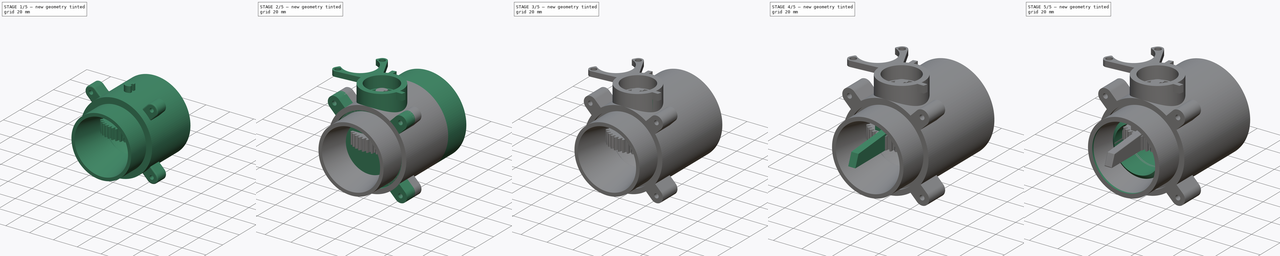
[diagram: build sequence overview — one tinted view per stage of 5, left to right]
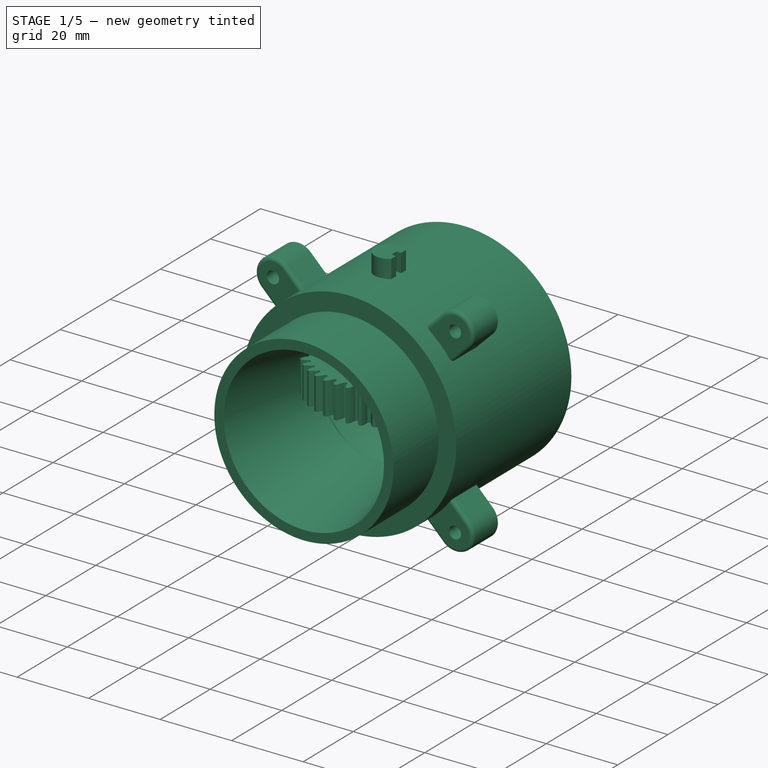
[diagram: stage 1 of 5 — iso view after this stage's code; geometry added in this stage tinted green]
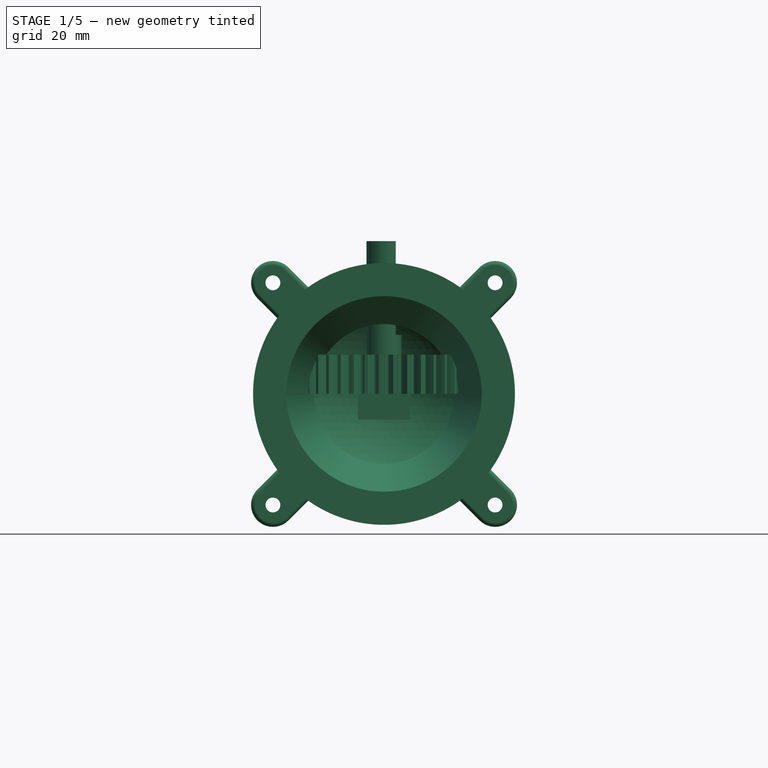
[diagram: stage 1 of 5 — front view after this stage's code; geometry added in this stage tinted green]
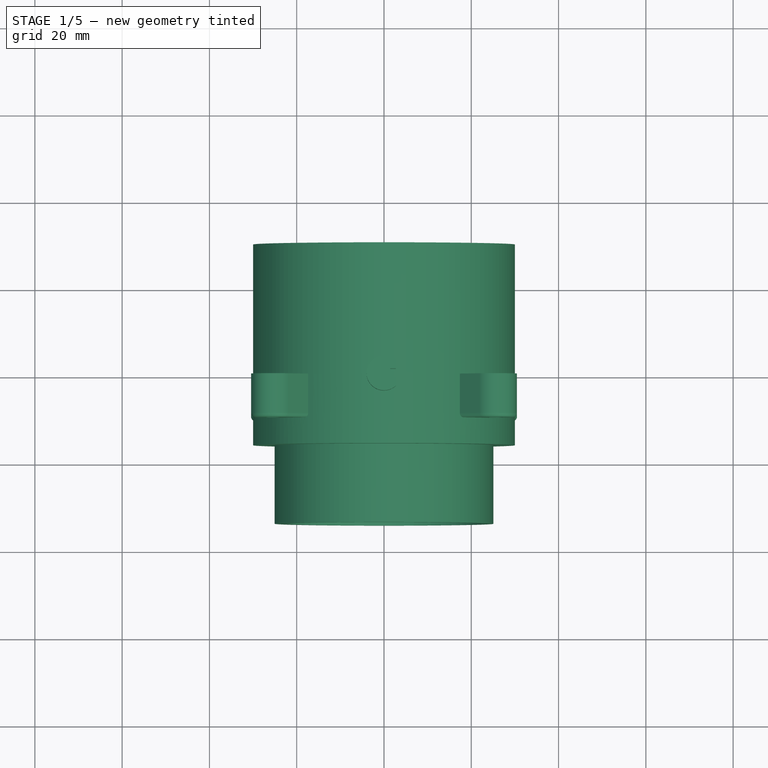
[diagram: stage 1 of 5 — top view after this stage's code; geometry added in this stage tinted green]
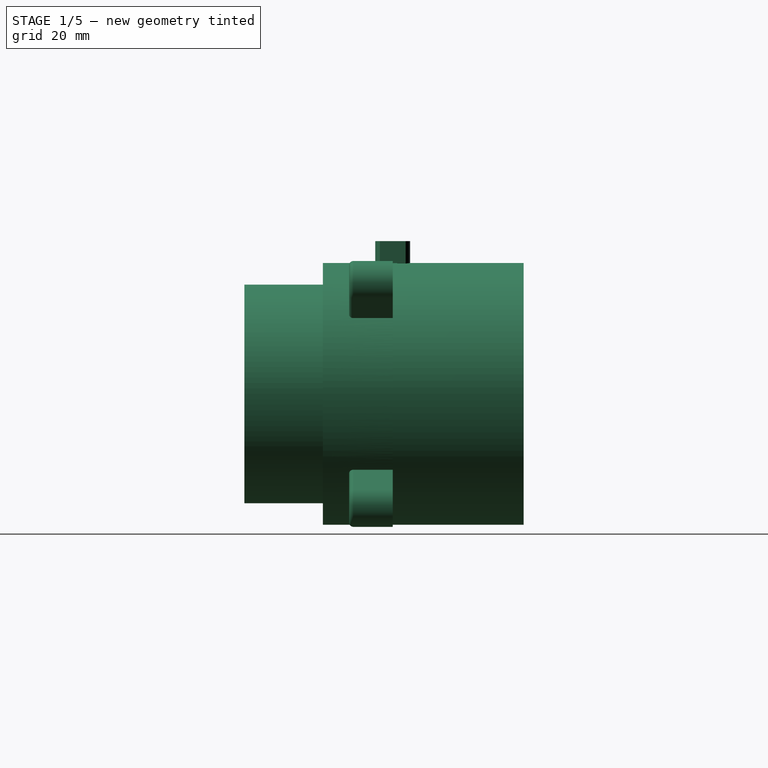
[diagram: stage 1 of 5 — right view after this stage's code; geometry added in this stage tinted green]
FCSTD DOCUMENT  (FreeCAD 0.20R29603 (Git))
Label: Pellet Sorter ball valve
License: All rights reserved
LicenseURL: http://en.wikipedia.org/wiki/All_rights_reserved
objects: Sketcher::SketchObject×77, PartDesign::Pad×37, PartDesign::Pocket×25, PartDesign::Body×15, PartDesign::Fillet×12, PartDesign::Revolution×10, PartDesign::Chamfer×7, PartDesign::Groove×5, PartDesign::PolarPattern×5, PartDesign::MultiTransform×5, Part::Part2DObjectPython×3, PartDesign::AdditiveLoft×1
note: 299 computed .brp shape members not serialized (recipe doc carries the construction recipe); baked Part::Feature solids carry a one-line shape summary decoded from their .brp

FEATURE [PartDesign::Body] Body001  label="Body001: Housing"
  Group = -> [Sketch002,Pad,Sketch003,Groove,Sketch004,Pocket001,Sketch005,Revolution001,Sketch006,Revolution002,Sketch007,Pocket002,Sketch008,Pocket003,Sketch009,Pocket004,Sketch016,Pocket007,Sketch021,Revolution004,Chamfer,Sketch024,Pad007,Sketch026,Pad009,Fillet001,MultiTransform001,PolarPattern001,Sketch033,Pad013,Sketch044,Pocket010,Sketch047,Pad020,Fillet005,Chamfer002]
  Origin = -> Origin001
  Tip = -> Chamfer002
FEATURE [Sketcher::SketchObject] Sketch048
  FullyConstrained = true
  MapMode = 5
  Placement = pos=(0,0,0) rot=(1,0,0;1.5708rad)
  Support = -> [XZ_Plane010]
  sketch-geometry (1):
    g0: Circle CenterX=0 CenterY=0 CenterZ=0 NormalX=0 NormalY=0 NormalZ=1 AngleXU=0 Radius=30
  constraints (2):
    c: Coincident(g0,g-1)
    c: Diameter(g0) = 60
FEATURE [PartDesign::Pad] Pad021
  Direction = (0,-1,-2e-16)
  Length = 16
  Length2 = 30
  Placement = pos=(0,0,0) rot=(1,0,0;1.5708rad)
  Profile = -> Sketch048
  ReferenceAxis = -> Sketch048 [N_Axis]
  Type = 4
FEATURE [Sketcher::SketchObject] Sketch049
  FullyConstrained = true
  MapMode = 5
  Placement = pos=(0,0,0) rot=(1,0,0;1.5708rad)
  Support = -> [XZ_Plane010]
  sketch-geometry (3):
    g0: LineSegment StartX=0 StartY=0 StartZ=0 EndX=8.4e-15 EndY=27.5 EndZ=0
    g1: LineSegment StartX=0 StartY=0 StartZ=0 EndX=0 EndY=-27.5 EndZ=0
    g2: ArcOfCircle CenterX=0 CenterY=0 CenterZ=0 NormalX=0 NormalY=0 NormalZ=1 AngleXU=0 Radius=27.5 StartAngle=4.71239 EndAngle=7.85398
  constraints (8):
    c: Coincident(g0,g-1)
    c: PointOnObject(g0,g-2)
    c: Coincident(g1,g0)
    c: PointOnObject(g1,g-2)
    c: Coincident(g2,g0)
    c: Coincident(g2,g0)
    c: Coincident(g2,g1)
    c: Diameter(g2) = 55
FEATURE [PartDesign::Groove] Groove002
  Angle = 360
  Axis = (0,-2e-16,1)
  Base = (0,0,0)
  BaseFeature = -> Pad021
  Placement = pos=(0,0,0) rot=(1,0,0;1.5708rad)
  Profile = -> Sketch049
  ReferenceAxis = -> Sketch049 [V_Axis]
FEATURE [PartDesign::Body] Body010  label="Body001: Housing v001"
  Group = -> [Sketch048,Pad021,Sketch049,Groove002,Sketch050,Pocket013,Sketch051,Revolution005,Sketch052,Revolution006,Sketch053,Pocket014,Sketch054,Pocket015,Sketch055,Pocket016,Sketch056,Pocket017,Sketch057,Revolution007,Sketch058,Pad022,Sketch059,Pad023,Fillet006,MultiTransform002,PolarPattern002,Sketch060,Pad024,Sketch061,Pocket018,Sketch062,Pad025,Fillet007,Chamfer004,Chamfer005,Sketch063,Pocket019,+1 more]
  Origin = -> Origin010
  Tip = -> Fillet010
FEATURE [Sketcher::SketchObject] Sketch070
  FullyConstrained = true
  MapMode = 5
  Placement = pos=(0,0,0) rot=(1,0,0;1.5708rad)
  Support = -> [XZ_Plane012]
  sketch-geometry (1):
    g0: Circle CenterX=0 CenterY=0 CenterZ=0 NormalX=0 NormalY=0 NormalZ=1 AngleXU=0 Radius=30
  constraints (2):
    c: Coincident(g0,g-1)
    c: Diameter(g0) = 60
FEATURE [PartDesign::Pad] Pad029
  Direction = (0,-1,2e-16)
  Length = 14
  Length2 = 10
  Placement = pos=(0,0,0) rot=(1,0,0;1.5708rad)
  Profile = -> Sketch070
  ReferenceAxis = -> Sketch070 [N_Axis]
  Type = 0
FEATURE [Sketcher::SketchObject] Sketch071
  FullyConstrained = true
  MapMode = 5
  Placement = pos=(0,0,0) rot=(0.57735,0.57735,0.57735;2.0944rad)
  Support = -> [YZ_Plane012]
  sketch-geometry (2):
    g0: ArcOfCircle CenterX=16 CenterY=0 CenterZ=0 NormalX=0 NormalY=0 NormalZ=1 AngleXU=0 Radius=27.5 StartAngle=0 EndAngle=3.14159
    g1: LineSegment StartX=-11.5 StartY=3.4e-15 StartZ=0 EndX=43.5 EndY=0 EndZ=0
  constraints (7):
    c: PointOnObject(g0,g-1)
    c: PointOnObject(g0,g-1)
    c: PointOnObject(g0,g-1)
    c: Diameter(g0) = 55
    c: Distance(g0,g-1) = 16
    c: Coincident(g1,g0)
    c: Coincident(g1,g0)
FEATURE [Sketcher::SketchObject] Sketch072
  FullyConstrained = true
  MapMode = 5
  Placement = pos=(0,0,0) rot=(1,0,0;1.5708rad)
  Support = -> [XZ_Plane012]
  sketch-geometry (1):
    g0: Circle CenterX=0 CenterY=0 CenterZ=0 NormalX=0 NormalY=0 NormalZ=1 AngleXU=0 Radius=16
  constraints (2):
    c: Coincident(g0,g-1)
    c: Diameter(g0) = 32
FEATURE [Sketcher::SketchObject] Sketch073
  FullyConstrained = true
  MapMode = 5
  Placement = pos=(0,0,0) rot=(0.57735,0.57735,0.57735;2.0944rad)
  Support = -> [YZ_Plane012]
  sketch-geometry (7):
    g0: LineSegment StartX=0 StartY=0 StartZ=0 EndX=16 EndY=0 EndZ=0
    g1: Circle CenterX=16 CenterY=0 CenterZ=0 NormalX=0 NormalY=0 NormalZ=1 AngleXU=0 Radius=26.15
    g2: Circle CenterX=16 CenterY=0 CenterZ=0 NormalX=0 NormalY=0 NormalZ=1 AngleXU=0 Radius=27.5
    g3: LineSegment StartX=-6.36627 StartY=16 StartZ=0 EndX=-4.68387 EndY=16 EndZ=0
    g4: ArcOfCircle CenterX=16 CenterY=0 CenterZ=0 NormalX=0 NormalY=0 NormalZ=1 AngleXU=0 Radius=26.15 StartAngle=2.42582 EndAngle=2.48319
    g5: ArcOfCircle CenterX=16 CenterY=0 CenterZ=0 NormalX=0 NormalY=0 NormalZ=1 AngleXU=0 Radius=27.5 StartAngle=2.39327 EndAngle=2.52063
    g6: LineSegment StartX=-4.15288 StartY=18.7113 StartZ=0 EndX=-3.73244 EndY=17.1596 EndZ=0
  constraints (19):
    c: Coincident(g0,g-1)
    c: PointOnObject(g0,g-1)
    c: Distance(g0) = 16
    c: Coincident(g1,g0)
    c: Coincident(g2,g0)
    c: Diameter(g1) = 52.3
    c: Diameter(g2) = 55
    c: PointOnObject(g3,g2)
    c: PointOnObject(g3,g1)
    c: Horizontal(g3)
    c: DistanceY(g0,g3) = 16
    c: Coincident(g4,g0)
    c: Coincident(g4,g3)
    c: Coincident(g5,g4)
    c: Coincident(g5,g3)
    c: Coincident(g6,g5)
    c: Coincident(g6,g4)
    c: Distance(g3,g4) = 1.5
    c: Distance(g5,g3) = 3.5
FEATURE [Sketcher::SketchObject] Sketch074
  FullyConstrained = true
  MapMode = 5
  Placement = pos=(0,-14,6e-15) rot=(1,0,0;1.5708rad)
  sketch-geometry (2):
    g0: Circle CenterX=0 CenterY=0 CenterZ=0 NormalX=0 NormalY=0 NormalZ=1 AngleXU=0 Radius=16
    g1: Circle CenterX=0 CenterY=0 CenterZ=0 NormalX=0 NormalY=0 NormalZ=1 AngleXU=0 Radius=25.05
  constraints (4):
    c: Coincident(g0,g-1)
    c: Coincident(g1,g0)
    c: Diameter(g1) = 50.1
    c: Diameter(g0) = 32
FEATURE [Sketcher::SketchObject] Sketch075
  FullyConstrained = true
  MapMode = 5
  Placement = pos=(0,0,0) rot=(1,0,0;1.5708rad)
  Support = -> [XZ_Plane012]
  sketch-geometry (6):
    g0: LineSegment StartX=0 StartY=0 StartZ=0 EndX=25.4558 EndY=25.4558 EndZ=0
    g1: Circle CenterX=25.4558 CenterY=25.4558 CenterZ=0 NormalX=0 NormalY=0 NormalZ=1 AngleXU=0 Radius=1.7
    g2: ArcOfCircle CenterX=25.4558 CenterY=25.4558 CenterZ=0 NormalX=0 NormalY=0 NormalZ=1 AngleXU=0 Radius=5 StartAngle=5.49779 EndAngle=8.63938
    g3: LineSegment StartX=21.9203 StartY=28.9914 StartZ=0 EndX=17.381 EndY=24.452 EndZ=0
    g4: LineSegment StartX=28.9914 StartY=21.9203 StartZ=0 EndX=24.452 EndY=17.381 EndZ=0
    g5: ArcOfCircle CenterX=0 CenterY=0 CenterZ=0 NormalX=0 NormalY=0 NormalZ=1 AngleXU=0 Radius=30 StartAngle=0.61795 EndAngle=0.952846
  constraints (15):
    c: Coincident(g0,g-1)
    c: Angle(g-1,g0) = 0.785398
    c: Distance(g0) = 36
    c: Coincident(g1,g0)
    c: Diameter(g1) = 3.4
    c: Coincident(g2,g1)
    c: Parallel(g3,g0)
    c: Parallel(g0,g4)
    c: Coincident(g5,g0)
    c: Coincident(g5,g3)
    c: Coincident(g5,g4)
    c: Diameter(g5) = 60
    c: Tangent(g4,g2) = 1.5708
    c: Tangent(g3,g2) = -1.5708
    c: Diameter(g2) = 10
FEATURE [PartDesign::PolarPattern] PolarPattern004
  Angle = 360
  Axis = -> Sketch075 [N_Axis]
  Occurrences = 4
  Placement = pos=(0,0,0) rot=(1,0,0;1.5708rad)
FEATURE [Sketcher::SketchObject] Sketch076
  FullyConstrained = true
  MapMode = 5
  Placement = pos=(0,0,0) rot=(-1,0,0;1.5708rad)
  Support = -> [Pad029]
  sketch-geometry (1):
    g0: Circle CenterX=0 CenterY=0 CenterZ=0 NormalX=0 NormalY=0 NormalZ=1 AngleXU=0 Radius=26.25
  constraints (2):
    c: Coincident(g0,g-1)
    c: Diameter(g0) = 52.5
FEATURE [PartDesign::Pad] Pad032
  BaseFeature = -> Pad029
  Direction = (0,1,-4e-16)
  Length = 8.7
  Length2 = 10
  Placement = pos=(0,0,0) rot=(1,0,0;1.5708rad)
  Profile = -> Sketch076
  ReferenceAxis = -> Sketch076 [N_Axis]
  Type = 0
FEATURE [PartDesign::Groove] Groove004
  Angle = 360
  Axis = (3e-16,1,-2e-16)
  Base = (0,0,0)
  BaseFeature = -> Pad032
  Placement = pos=(0,0,0) rot=(1,0,0;1.5708rad)
  Profile = -> Sketch071
  ReferenceAxis = -> Sketch071 [H_Axis]
  Reversed = true
FEATURE [PartDesign::Fillet] Fillet012
  Base = -> Groove004 [Edge7,Edge6]
  BaseFeature = -> Groove004
  Placement = pos=(0,0,0) rot=(1,0,0;1.5708rad)
  Radius = 0.2
  SupportTransform = false
  UseAllEdges = false
FEATURE [PartDesign::Pocket] Pocket021
  BaseFeature = -> Fillet012
  Direction = (0,1,2e-16)
  Length = 5
  Length2 = 5
  Midplane = true
  Placement = pos=(0,0,0) rot=(1,0,0;1.5708rad)
  Profile = -> Sketch072
  ReferenceAxis = -> Sketch072 [N_Axis]
  Type = 1
FEATURE [PartDesign::Revolution] Revolution009
  Angle = 360
  Axis = (3e-16,1,-2e-16)
  Base = (0,0,0)
  BaseFeature = -> Pocket021
  Placement = pos=(0,0,0) rot=(1,0,0;1.5708rad)
  Profile = -> Sketch073
  ReferenceAxis = -> Sketch073 [H_Axis]
FEATURE [PartDesign::Pad] Pad030
  BaseFeature = -> Revolution009
  Direction = (0,-1,2e-16)
  Length = 20
  Length2 = 10
  Placement = pos=(0,0,0) rot=(1,0,0;1.5708rad)
  Profile = -> Sketch074
  ReferenceAxis = -> Sketch074 [N_Axis]
  Type = 0
FEATURE [PartDesign::Pad] Pad031
  BaseFeature = -> Pad030
  Direction = (0,-1,-2e-16)
  Length = 10
  Length2 = 10
  Placement = pos=(0,0,0) rot=(1,0,0;1.5708rad)
  Profile = -> Sketch075
  ReferenceAxis = -> Sketch075 [N_Axis]
  Type = 0
FEATURE [PartDesign::Fillet] Fillet011
  Base = -> Pad031 [Edge28,Edge27,Edge26]
  BaseFeature = -> Pad031
  Placement = pos=(0,0,0) rot=(1,0,0;1.5708rad)
  Radius = 1
  SupportTransform = false
  UseAllEdges = false
FEATURE [PartDesign::MultiTransform] MultiTransform004
  BaseFeature = -> Fillet011
  Originals = -> [Pad031,Fillet011]
  Placement = pos=(0,0,0) rot=(1,0,0;1.5708rad)
  Transformations = -> [PolarPattern004]
FEATURE [PartDesign::Chamfer] Chamfer007
  Angle = 45
  Base = -> MultiTransform004 [Edge119]
  BaseFeature = -> MultiTransform004
  ChamferType = 1
  FlipDirection = false
  Placement = pos=(0,0,0) rot=(1,0,0;1.5708rad)
  Size = 6.4
  Size2 = 29
  SupportTransform = false
  UseAllEdges = false
FEATURE [PartDesign::Body] Body012  label="Body004: Cap v002"
  Group = -> [Sketch070,Pad029,Sketch071,Sketch076,Pad032,Groove004,Sketch072,Fillet012,Pocket021,Sketch073,Revolution009,Sketch074,Pad030,Sketch075,Pad031,Fillet011,MultiTransform004,PolarPattern004,Chamfer007]
  Origin = -> Origin012
  Placement = pos=(0,-16,0) rot=(0,0,1;0rad)
  Tip = -> Chamfer007
FEATURE [Part::Part2DObjectPython] InvoluteGear002  # Draft 2D object (typed FeaturePython)
  ExternalGear = true
  HighPrecision = true
  Modules = 1
  NumberOfTeeth = 39
  PressureAngle = 20
FEATURE [PartDesign::Pad] Pad033
  Direction = (0,0,1)
  Length = 9
  Length2 = 10
  Profile = -> InvoluteGear002
  ReferenceAxis = -> InvoluteGear002 [N_Axis]
  Type = 0
FEATURE [Sketcher::SketchObject] Sketch077
  FullyConstrained = true
  MapMode = 5
  Support = -> [XY_Plane013]
  sketch-geometry (9):
    g0: ArcOfCircle CenterX=0 CenterY=0 CenterZ=0 NormalX=0 NormalY=0 NormalZ=1 AngleXU=0 Radius=4.15 StartAngle=0.813792 EndAngle=5.46939
    g1: LineSegment StartX=2.85 StartY=3.01662 StartZ=0 EndX=2.85 EndY=0.85 EndZ=0
    g2: LineSegment StartX=2.85 StartY=0.85 StartZ=0 EndX=1.55 EndY=0.85 EndZ=0
    g3: LineSegment StartX=1.55 StartY=0.85 StartZ=0 EndX=1.55 EndY=-0.85 EndZ=0
    g4: LineSegment StartX=1.55 StartY=-0.85 StartZ=0 EndX=2.85 EndY=-0.85 EndZ=0
    g5: LineSegment StartX=2.85 StartY=-0.85 StartZ=0 EndX=2.85 EndY=-3.01662 EndZ=0
    g6: LineSegment StartX=1.55 StartY=0 StartZ=0 EndX=-4.15 EndY=0 EndZ=0
    g7: LineSegment StartX=2.85 StartY=0.85 StartZ=0 EndX=2.85 EndY=-0.85 EndZ=0
    g8: LineSegment StartX=2.85 StartY=0 StartZ=0 EndX=-4.15 EndY=0 EndZ=0
  constraints (27):
    c: Coincident(g0,g-1)
    c: Vertical(g1)
    c: Coincident(g2,g1)
    c: Horizontal(g2)
    c: Coincident(g3,g2)
    c: Vertical(g3)
    c: Horizontal(g4)
    c: Coincident(g5,g4)
    c: Vertical(g5)
    c: Diameter(g0) = 8.3
    c: Coincident(g0,g5)
    c: Coincident(g0,g1)
    c: PointOnObject(g6,g3)
    c: PointOnObject(g6,g0)
    c: Horizontal(g6)
    c: Perpendicular(g0,g6)
    c: Distance(g6) = 5.7
    c: Coincident(g7,g1)
    c: Coincident(g7,g4)
    c: Vertical(g7)
    c: PointOnObject(g8,g7)
    c: Coincident(g8,g6)
    c: Horizontal(g8)
    c: Distance(g8) = 7
    c: Equal(g1,g5)
    c: Coincident(g3,g4)
    c: Distance(g7) = 1.7
FEATURE [PartDesign::Pocket] Pocket022
  BaseFeature = -> Pad033
  Direction = (0,0,-1)
  Length = 5
  Length2 = 5
  Profile = -> Sketch077
  ReferenceAxis = -> Sketch077 [N_Axis]
  Reversed = true
  Type = 1
FEATURE [PartDesign::Body] Body013  label="Body009: Gear v001"
  Group = -> [InvoluteGear002,Pad033,Sketch077,Pocket022]
  Origin = -> Origin013
  Placement = pos=(0,0,42.5) rot=(0,0,1;0rad)
  Tip = -> Pocket022
FEATURE [Sketcher::SketchObject] Sketch078
  FullyConstrained = true
  MapMode = 5
  Support = -> [XY_Plane014]
  sketch-geometry (1):
    g0: Circle CenterX=0 CenterY=0 CenterZ=0 NormalX=0 NormalY=0 NormalZ=1 AngleXU=0 Radius=4
  constraints (2):
    c: Coincident(g0,g-1)
    c: Diameter(g0) = 8
FEATURE [PartDesign::Pad] Pad034
  Direction = (0,0,1)
  Length = 35
  Length2 = 10
  Profile = -> Sketch078
  ReferenceAxis = -> Sketch078 [N_Axis]
  Type = 0
FEATURE [Sketcher::SketchObject] Sketch079
  FullyConstrained = true
  MapMode = 5
  Placement = pos=(0,0,0) rot=(1,0,0;3.14159rad)
  Support = -> [Pad034]
  sketch-geometry (5):
    g0: LineSegment StartX=-6 StartY=2.3 StartZ=0 EndX=-6 EndY=-2.3 EndZ=0
    g1: LineSegment StartX=-6 StartY=-2.3 StartZ=0 EndX=6 EndY=-2.3 EndZ=0
    g2: LineSegment StartX=6 StartY=-2.3 StartZ=0 EndX=6 EndY=2.3 EndZ=0
    g3: LineSegment StartX=6 StartY=2.3 StartZ=0 EndX=-6 EndY=2.3 EndZ=0
    g4: GeomPoint X=0 Y=0 Z=0
  constraints (12):
    c: Coincident(g0,g1)
    c: Coincident(g1,g2)
    c: Coincident(g2,g3)
    c: Coincident(g3,g0)
    c: Horizontal(g1)
    c: Horizontal(g3)
    c: Vertical(g0)
    c: Vertical(g2)
    c: Symmetric(g1,g0,g4)
    c: Coincident(g4,g-1)
    c: Distance(g2) = 4.6
    c: Distance(g3) = 12
FEATURE [PartDesign::Pad] Pad035
  BaseFeature = -> Pad034
  Direction = (0,0,-1)
  Length = 5.9
  Length2 = 10
  Profile = -> Sketch079
  ReferenceAxis = -> Sketch079 [N_Axis]
  Type = 0
FEATURE [Sketcher::SketchObject] Sketch080
  FullyConstrained = true
  MapMode = 5
  Placement = pos=(0,0,0) rot=(0.57735,0.57735,0.57735;2.0944rad)
  Support = -> [YZ_Plane014]
  sketch-geometry (8):
    g0: LineSegment StartX=-2.3 StartY=0 StartZ=0 EndX=-4 EndY=1.5 EndZ=0
    g1: LineSegment StartX=-4 StartY=1.5 StartZ=0 EndX=-4 EndY=0 EndZ=0
    g2: LineSegment StartX=-4 StartY=0 StartZ=0 EndX=-2.3 EndY=0 EndZ=0
    g3: LineSegment StartX=2.3 StartY=0 StartZ=0 EndX=4 EndY=1.5 EndZ=0
    g4: LineSegment StartX=4 StartY=1.5 StartZ=0 EndX=4 EndY=0 EndZ=0
    g5: LineSegment StartX=4 StartY=0 StartZ=0 EndX=2.3 EndY=0 EndZ=0
    g6: LineSegment StartX=-2.3 StartY=0 StartZ=0 EndX=0 EndY=0 EndZ=0
    g7: LineSegment StartX=0 StartY=0 StartZ=0 EndX=2.3 EndY=0 EndZ=0
  constraints (22):
    c: PointOnObject(g0,g-1)
    c: Coincident(g1,g0)
    c: PointOnObject(g1,g-1)
    c: Vertical(g1)
    c: Coincident(g2,g1)
    c: Coincident(g2,g0)
    c: DistanceX(g0,g-1) = 2.3
    c: DistanceX(g1,g-1) = 4
    c: Distance(g1) = 1.5
    c: PointOnObject(g3,g-1)
    c: PointOnObject(g4,g-1)
    c: Coincident(g5,g4)
    c: Coincident(g5,g3)
    c: Vertical(g4)
    c: Equal(g5,g2)
    c: Equal(g1,g4)
    c: Coincident(g3,g4)
    c: Coincident(g6,g0)
    c: Coincident(g6,g-1)
    c: Coincident(g7,g6)
    c: Coincident(g7,g3)
    c: Equal(g6,g7)
FEATURE [PartDesign::Pocket] Pocket023
  BaseFeature = -> Pad035
  Direction = (-1,2e-16,-3e-16)
  Length = 5
  Length2 = 5
  Midplane = true
  Profile = -> Sketch080
  ReferenceAxis = -> Sketch080 [N_Axis]
  Type = 1
FEATURE [Sketcher::SketchObject] Sketch081
  FullyConstrained = true
  MapMode = 5
  Placement = pos=(0,0,35) rot=(0,0,1;0rad)
  Support = -> [Pocket023]
  sketch-geometry (17):
    g0: LineSegment StartX=1.4 StartY=1 StartZ=0 EndX=1.4 EndY=-1 EndZ=0
    g1: LineSegment StartX=1.4 StartY=-1 StartZ=0 EndX=6.4 EndY=-1 EndZ=0
    g2: LineSegment StartX=6.4 StartY=-1 StartZ=0 EndX=6.4 EndY=1 EndZ=0
    g3: LineSegment StartX=6.4 StartY=1 StartZ=0 EndX=1.4 EndY=1 EndZ=0
    g4: GeomPoint X=3.9 Y=0 Z=0
    g5: LineSegment StartX=3.9 StartY=0 StartZ=0 EndX=1.4 EndY=0 EndZ=0
    g6: Circle CenterX=0 CenterY=0 CenterZ=0 NormalX=0 NormalY=0 NormalZ=1 AngleXU=0 Radius=4
    g7: LineSegment StartX=2.7 StartY=2.95127 StartZ=0 EndX=2.7 EndY=1 EndZ=0
    g8: LineSegment StartX=2.7 StartY=-1 StartZ=0 EndX=2.7 EndY=-2.95127 EndZ=0
    g9: ArcOfCircle CenterX=0 CenterY=0 CenterZ=0 NormalX=0 NormalY=0 NormalZ=1 AngleXU=0 Radius=4 StartAngle=0.25268 EndAngle=0.829832
    g10: ArcOfCircle CenterX=0 CenterY=0 CenterZ=0 NormalX=0 NormalY=0 NormalZ=1 AngleXU=0 Radius=4 StartAngle=5.45335 EndAngle=6.03051
    g11: LineSegment StartX=2.7 StartY=1 StartZ=0 EndX=2.7 EndY=-1 EndZ=0
    g12: LineSegment StartX=2.7 StartY=0 StartZ=0 EndX=-4 EndY=0 EndZ=0
    g13: LineSegment StartX=2.7 StartY=1 StartZ=0 EndX=1.4 EndY=1 EndZ=0
    g14: LineSegment StartX=1.4 StartY=-1 StartZ=0 EndX=2.7 EndY=-1 EndZ=0
    g15: LineSegment StartX=3.87298 StartY=1 StartZ=0 EndX=6.4 EndY=1 EndZ=0
    g16: LineSegment StartX=3.87298 StartY=-1 StartZ=0 EndX=6.4 EndY=-1 EndZ=0
  constraints (46):
    c: Coincident(g0,g1)
    c: Coincident(g1,g2)
    c: Coincident(g2,g3)
    c: Coincident(g3,g0)
    c: Horizontal(g1)
    c: Horizontal(g3)
    c: Vertical(g0)
    c: Vertical(g2)
    c: Symmetric(g1,g0,g4)
    c: PointOnObject(g4,g-1)
    c: Coincident(g5,g4)
    c: PointOnObject(g5,g0)
    c: Horizontal(g5)
    c: Distance(g4,g-1) = 3.9
    c: Distance(g0) = 2
    c: Distance(g5) = 2.5
    c: Coincident(g6,g-1)
    c: Diameter(g6) = 8
    c: PointOnObject(g7,g6)
    c: PointOnObject(g7,g3)
    c: Vertical(g7)
    c: PointOnObject(g8,g1)
    c: PointOnObject(g8,g6)
    c: Vertical(g8)
    c: Coincident(g9,g6)
    c: Coincident(g9,g7)
    c: PointOnObject(g9,g3)
    c: Coincident(g10,g9)
    c: Coincident(g10,g8)
    c: PointOnObject(g10,g1)
    c: Equal(g8,g7)
    c: Coincident(g11,g7)
    c: Coincident(g11,g8)
    c: PointOnObject(g12,g11)
    c: PointOnObject(g12,g6)
    c: Horizontal(g12)
    c: Perpendicular(g6,g12)
    c: Distance(g12) = 6.7
    c: Coincident(g13,g7)
    c: Coincident(g13,g0)
    c: Coincident(g14,g0)
    c: Coincident(g14,g8)
    c: Coincident(g15,g9)
    c: Coincident(g15,g2)
    c: Coincident(g16,g10)
    c: Coincident(g16,g2)
FEATURE [PartDesign::Pocket] Pocket024
  BaseFeature = -> Pocket023
  Direction = (0,0,-1)
  Length = 21.5
  Length2 = 5
  Profile = -> Sketch081
  ReferenceAxis = -> Sketch081 [N_Axis]
  Type = 0
FEATURE [Sketcher::SketchObject] Sketch082
  AttachmentOffset = pos=(0,0,2) rot=(0,0,1;0rad)
  FullyConstrained = true
  MapMode = 5
  Placement = pos=(0,0,2) rot=(0,0,1;0rad)
  Support = -> [XY_Plane014]
  sketch-geometry (1):
    g0: Circle CenterX=0 CenterY=0 CenterZ=0 NormalX=0 NormalY=0 NormalZ=1 AngleXU=0 Radius=5
  constraints (2):
    c: Coincident(g0,g-1)
    c: Diameter(g0) = 10
FEATURE [PartDesign::Pad] Pad036
  BaseFeature = -> Pocket024
  Direction = (0,0,1)
  Length = 1.9
  Length2 = 10
  Profile = -> Sketch082
  ReferenceAxis = -> Sketch082 [N_Axis]
  Type = 0
FEATURE [PartDesign::Body] Body014  label="Body003: Shaft v001"
  Group = -> [Sketch078,Pad034,Sketch079,Pad035,Sketch080,Pocket023,Sketch081,Pocket024,Sketch082,Pad036]
  Origin = -> Origin014
  Placement = pos=(0,0,27) rot=(0,0,1;0rad)
  Tip = -> Pad036
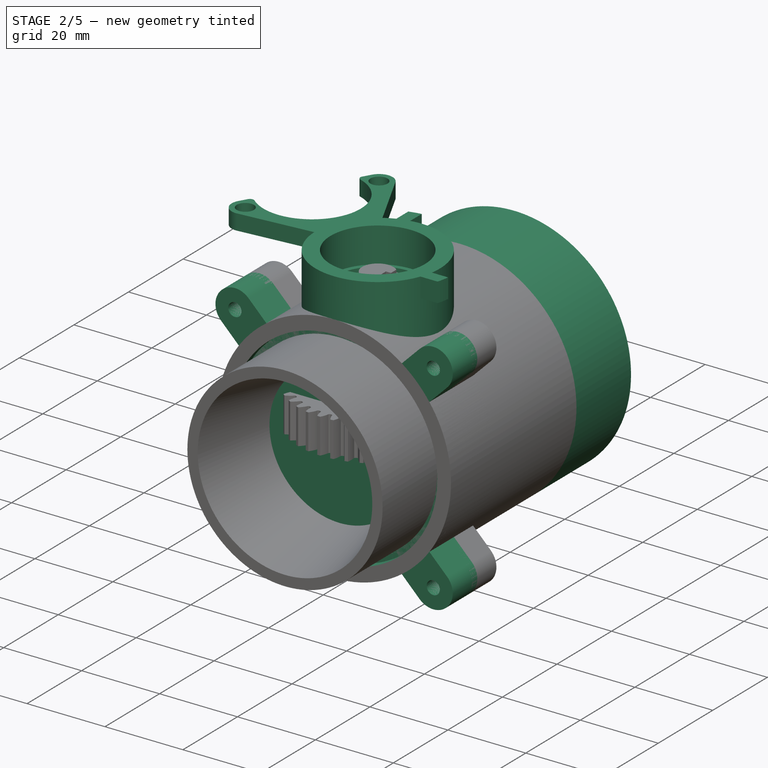
[diagram: stage 2 of 5 — iso view after this stage's code; geometry added in this stage tinted green]
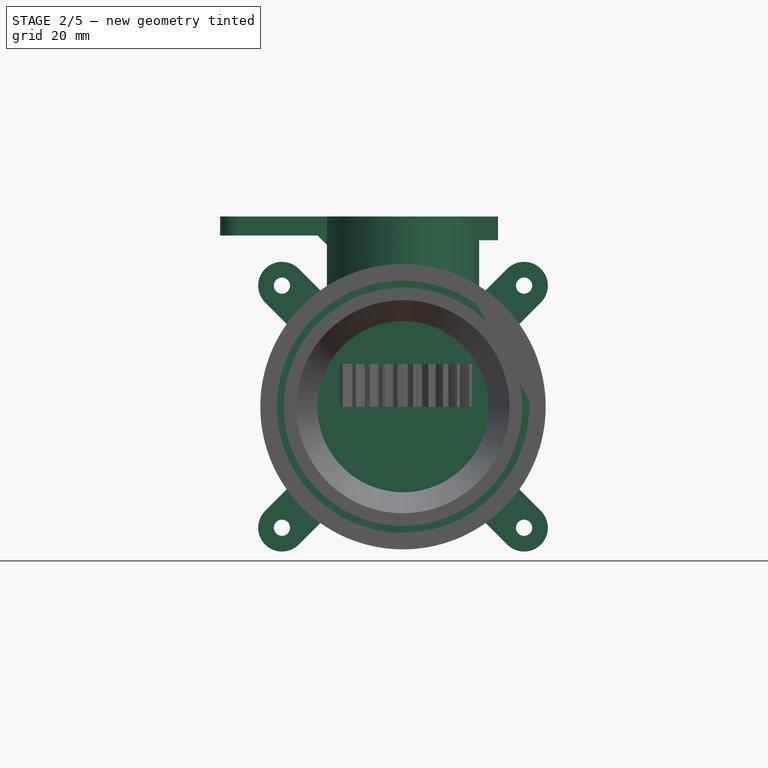
[diagram: stage 2 of 5 — front view after this stage's code; geometry added in this stage tinted green]
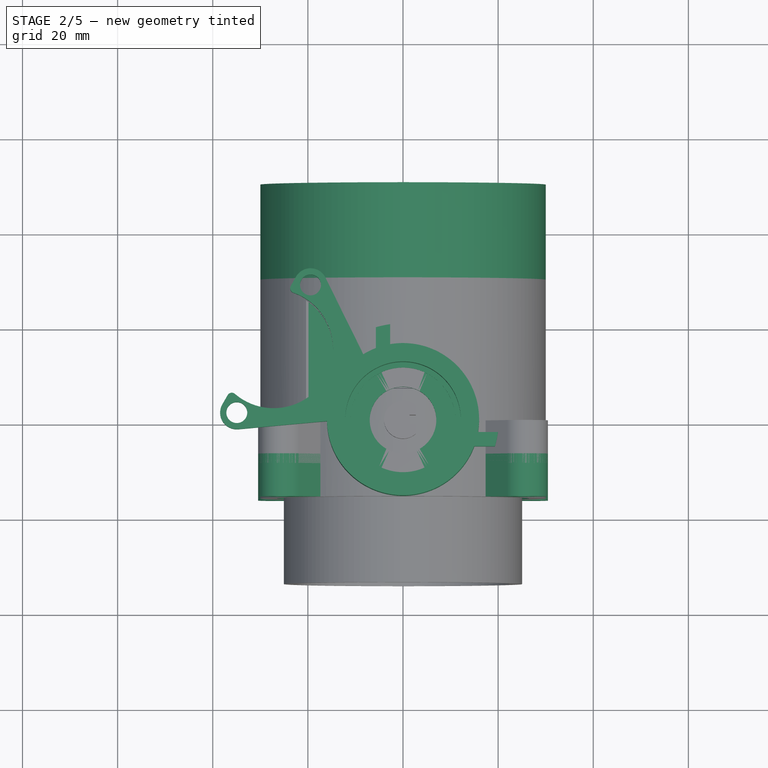
[diagram: stage 2 of 5 — top view after this stage's code; geometry added in this stage tinted green]
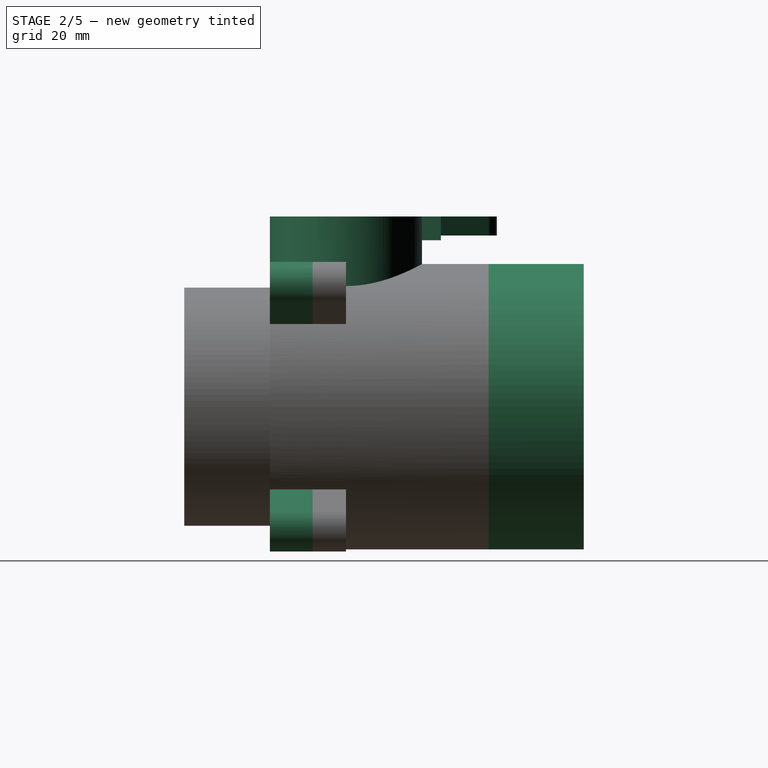
[diagram: stage 2 of 5 — right view after this stage's code; geometry added in this stage tinted green]
FEATURE [Sketcher::SketchObject] Sketch050
  FullyConstrained = true
  MapMode = 5
  Placement = pos=(0,0,0) rot=(1,0,0;1.5708rad)
  Support = -> [XZ_Plane010]
  sketch-geometry (1):
    g0: Circle CenterX=0 CenterY=0 CenterZ=0 NormalX=0 NormalY=0 NormalZ=1 AngleXU=0 Radius=16
  constraints (2):
    c: Coincident(g0,g-1)
    c: Diameter(g0) = 32
FEATURE [PartDesign::Pocket] Pocket013
  BaseFeature = -> Groove002
  Direction = (0,1,2e-16)
  Length = 5
  Length2 = 5
  Placement = pos=(0,0,0) rot=(1,0,0;1.5708rad)
  Profile = -> Sketch050
  ReferenceAxis = -> Sketch050 [N_Axis]
  Type = 1
FEATURE [Sketcher::SketchObject] Sketch051
  FullyConstrained = true
  MapMode = 5
  Placement = pos=(0,0,0) rot=(0.57735,0.57735,0.57735;2.0944rad)
  Support = -> [YZ_Plane010]
  sketch-geometry (6):
    g0: Circle CenterX=0 CenterY=0 CenterZ=0 NormalX=0 NormalY=0 NormalZ=1 AngleXU=0 Radius=26.15
    g1: Circle CenterX=0 CenterY=0 CenterZ=0 NormalX=0 NormalY=0 NormalZ=1 AngleXU=0 Radius=27.5
    g2: LineSegment StartX=22.3663 StartY=16 StartZ=0 EndX=20.6839 EndY=16 EndZ=0
    g3: LineSegment StartX=19.7324 StartY=17.1596 StartZ=0 EndX=20.1529 EndY=18.7113 EndZ=0
    g4: ArcOfCircle CenterX=0 CenterY=0 CenterZ=0 NormalX=0 NormalY=0 NormalZ=1 AngleXU=0 Radius=26.15 StartAngle=0.658403 EndAngle=0.715773
    g5: ArcOfCircle CenterX=0 CenterY=0 CenterZ=0 NormalX=0 NormalY=0 NormalZ=1 AngleXU=0 Radius=27.5 StartAngle=0.620962 EndAngle=0.748321
  constraints (16):
    c: Coincident(g0,g-1)
    c: Coincident(g1,g0)
    c: Diameter(g0) = 52.3
    c: Diameter(g1) = 55
    c: PointOnObject(g2,g1)
    c: PointOnObject(g2,g0)
    c: Horizontal(g2)
    c: Coincident(g4,g0)
    c: Coincident(g4,g2)
    c: Coincident(g4,g3)
    c: Coincident(g5,g4)
    c: Coincident(g5,g2)
    c: Coincident(g5,g3)
    c: Distance(g2,g3) = 1.5
    c: Distance(g2,g3) = 3.5
    c: DistanceY(g4,g2) = 16
FEATURE [PartDesign::Revolution] Revolution005
  Angle = 360
  Axis = (3e-16,1,-2e-16)
  Base = (0,0,0)
  BaseFeature = -> Pocket013
  Placement = pos=(0,0,0) rot=(1,0,0;1.5708rad)
  Profile = -> Sketch051
  ReferenceAxis = -> Sketch051 [H_Axis]
FEATURE [Sketcher::SketchObject] Sketch052
  FullyConstrained = true
  MapMode = 5
  Placement = pos=(0,0,0) rot=(1,0,0;1.5708rad)
  Support = -> [XZ_Plane010]
  sketch-geometry (4):
    g0: LineSegment StartX=1.8e-15 StartY=30 StartZ=0 EndX=0 EndY=40 EndZ=0
    g1: ArcOfCircle CenterX=0 CenterY=0 CenterZ=0 NormalX=0 NormalY=0 NormalZ=1 AngleXU=0 Radius=30 StartAngle=1.00826 EndAngle=1.5708
    g2: LineSegment StartX=16 StartY=25.3772 StartZ=0 EndX=16 EndY=40 EndZ=0
    g3: LineSegment StartX=16 StartY=40 StartZ=0 EndX=0 EndY=40 EndZ=0
  constraints (12):
    c: PointOnObject(g0,g-2)
    c: PointOnObject(g0,g-2)
    c: Coincident(g1,g-1)
    c: Coincident(g1,g0)
    c: Coincident(g2,g1)
    c: Vertical(g2)
    c: Coincident(g3,g2)
    c: Coincident(g3,g0)
    c: Horizontal(g3)
    c: Distance(g3) = 16
    c: Diameter(g1) = 60
    c: Distance(g0) = 10
FEATURE [PartDesign::Revolution] Revolution006
  Angle = 360
  Axis = (0,-2e-16,1)
  Base = (0,0,0)
  BaseFeature = -> Revolution005
  Placement = pos=(0,0,0) rot=(1,0,0;1.5708rad)
  Profile = -> Sketch052
  ReferenceAxis = -> Sketch052 [V_Axis]
  Reversed = true
FEATURE [Sketcher::SketchObject] Sketch053
  FullyConstrained = true
  MapMode = 5
  Placement = pos=(0,-4.4e-15,40) rot=(0,0,1;3.14159rad)
  Support = -> [Revolution006]
  sketch-geometry (1):
    g0: Circle CenterX=0 CenterY=0 CenterZ=0 NormalX=0 NormalY=0 NormalZ=1 AngleXU=0 Radius=12.15
  constraints (2):
    c: Coincident(g0,g-1)
    c: Diameter(g0) = 24.3
FEATURE [PartDesign::Pocket] Pocket014
  BaseFeature = -> Revolution006
  Direction = (0,1e-16,-1)
  Length = 9
  Length2 = 5
  Placement = pos=(0,0,0) rot=(1,0,0;1.5708rad)
  Profile = -> Sketch053
  ReferenceAxis = -> Sketch053 [N_Axis]
  Type = 0
FEATURE [Sketcher::SketchObject] Sketch054
  FullyConstrained = true
  MapMode = 5
  Placement = pos=(0,3.4e-15,31) rot=(0,0,1;3.14159rad)
  Support = -> [Pocket014]
  sketch-geometry (1):
    g0: Circle CenterX=0 CenterY=0 CenterZ=0 NormalX=0 NormalY=0 NormalZ=1 AngleXU=0 Radius=11
  constraints (2):
    c: Coincident(g0,g-1)
    c: Diameter(g0) = 22
FEATURE [PartDesign::Pocket] Pocket015
  BaseFeature = -> Pocket014
  Direction = (0,-1e-16,-1)
  Length = 1
  Length2 = 5
  Placement = pos=(0,0,0) rot=(1,0,0;1.5708rad)
  Profile = -> Sketch054
  ReferenceAxis = -> Sketch054 [N_Axis]
  Type = 0
FEATURE [Sketcher::SketchObject] Sketch055
  FullyConstrained = true
  MapMode = 5
  Placement = pos=(0,3.3e-15,30) rot=(0,0,1;3.14159rad)
  Support = -> [Pocket015]
  sketch-geometry (1):
    g0: Circle CenterX=0 CenterY=0 CenterZ=0 NormalX=0 NormalY=0 NormalZ=1 AngleXU=0 Radius=7
  constraints (2):
    c: Coincident(g0,g-1)
    c: Diameter(g0) = 14
FEATURE [PartDesign::Pocket] Pocket016
  BaseFeature = -> Pocket015
  Direction = (0,-1e-16,-1)
  Length = 10
  Length2 = 5
  Placement = pos=(0,0,0) rot=(1,0,0;1.5708rad)
  Profile = -> Sketch055
  ReferenceAxis = -> Sketch055 [N_Axis]
  Type = 0
FEATURE [Sketcher::SketchObject] Sketch056
  FullyConstrained = true
  MapMode = 5
  Placement = pos=(0,0,0) rot=(1,0,0;1.5708rad)
  Support = -> [XZ_Plane010]
  sketch-geometry (1):
    g0: Circle CenterX=0 CenterY=0 CenterZ=0 NormalX=0 NormalY=0 NormalZ=1 AngleXU=0 Radius=26.5
  constraints (2):
    c: Coincident(g0,g-1)
    c: Diameter(g0) = 53
FEATURE [PartDesign::Pocket] Pocket017
  BaseFeature = -> Pocket016
  Direction = (0,1,2e-16)
  Length = 5
  Length2 = 5
  Placement = pos=(0,0,0) rot=(1,0,0;1.5708rad)
  Profile = -> Sketch056
  ReferenceAxis = -> Sketch056 [N_Axis]
  Reversed = true
  Type = 1
FEATURE [Sketcher::SketchObject] Sketch057
  FullyConstrained = true
  MapMode = 5
  Placement = pos=(0,0,0) rot=(1,0,0;1.5708rad)
  Support = -> [XZ_Plane010]
  sketch-geometry (8):
    g0: ArcOfCircle CenterX=0 CenterY=0 CenterZ=0 NormalX=0 NormalY=0 NormalZ=1 AngleXU=0 Radius=26.2 StartAngle=4.48133 EndAngle=4.52037
    g1: ArcOfCircle CenterX=0 CenterY=0 CenterZ=0 NormalX=0 NormalY=0 NormalZ=1 AngleXU=0 Radius=27.5 StartAngle=4.48133 EndAngle=4.71239
    g2: LineSegment StartX=-6 StartY=-25.5037 StartZ=0 EndX=-6.29771 EndY=-26.7692 EndZ=0
    g3: LineSegment StartX=-4.9e-15 StartY=-26.8 StartZ=0 EndX=-5.1e-15 EndY=-27.5 EndZ=0
    g4: LineSegment StartX=-6 StartY=-25.5037 StartZ=0 EndX=0 EndY=-25.5037 EndZ=0
    g5: LineSegment StartX=-5 StartY=-25.7185 StartZ=0 EndX=-5.1145 EndY=-26.3074 EndZ=0
    g6: ArcOfCircle CenterX=0 CenterY=0 CenterZ=0 NormalX=0 NormalY=0 NormalZ=1 AngleXU=0 Radius=26.8 StartAngle=4.52037 EndAngle=4.71239
    g7: LineSegment StartX=-5 StartY=-25.7185 StartZ=0 EndX=0 EndY=-25.7185 EndZ=0
  constraints (24):
    c: Coincident(g0,g-1)
    c: Diameter(g0) = 52.4
    c: Coincident(g1,g0)
    c: Diameter(g1) = 55
    c: Coincident(g2,g0)
    c: Coincident(g2,g1)
    c: Coincident(g3,g1)
    c: Perpendicular(g0,g2)
    c: Perpendicular(g0,g3)
    c: Coincident(g4,g0)
    c: PointOnObject(g4,g-2)
    c: Horizontal(g4)
    c: Distance(g4) = 6
    c: Coincident(g6,g0)
    c: Coincident(g6,g5)
    c: Coincident(g0,g5)
    c: Coincident(g3,g6)
    c: Perpendicular(g0,g5)
    c: Coincident(g7,g0)
    c: PointOnObject(g7,g-2)
    c: Horizontal(g7)
    c: Distance(g7) = 5
    c: Distance(g5) = 0.6
    c: PointOnObject(g1,g-2)
FEATURE [PartDesign::Revolution] Revolution007
  Angle = 360
  Axis = (0,-2e-16,1)
  Base = (0,0,0)
  BaseFeature = -> Pocket017
  Placement = pos=(0,0,0) rot=(1,0,0;1.5708rad)
  Profile = -> Sketch057
  ReferenceAxis = -> Sketch057 [V_Axis]
FEATURE [Sketcher::SketchObject] Sketch058
  FullyConstrained = true
  MapMode = 5
  Placement = pos=(0,30,0) rot=(-1,0,0;1.5708rad)
  sketch-geometry (2):
    g0: Circle CenterX=0 CenterY=0 CenterZ=0 NormalX=0 NormalY=0 NormalZ=1 AngleXU=0 Radius=30
    g1: Circle CenterX=0 CenterY=0 CenterZ=0 NormalX=0 NormalY=0 NormalZ=1 AngleXU=0 Radius=16
  constraints (4):
    c: Coincident(g0,g-1)
    c: Coincident(g1,g0)
    c: Diameter(g0) = 60
    c: Diameter(g1) = 32
FEATURE [PartDesign::Pad] Pad022
  BaseFeature = -> Revolution007
  Direction = (0,1,2e-16)
  Length = 20
  Length2 = 10
  Placement = pos=(0,0,0) rot=(1,0,0;1.5708rad)
  Profile = -> Sketch058
  ReferenceAxis = -> Sketch058 [N_Axis]
  Type = 0
FEATURE [Sketcher::SketchObject] Sketch059
  FullyConstrained = true
  MapMode = 5
  Placement = pos=(0,-16,1.42e-14) rot=(1,0,0;1.5708rad)
  Support = -> [Pad022]
  sketch-geometry (6):
    g0: LineSegment StartX=0 StartY=0 StartZ=0 EndX=25.4558 EndY=25.4558 EndZ=0
    g1: Circle CenterX=25.4558 CenterY=25.4558 CenterZ=0 NormalX=0 NormalY=0 NormalZ=1 AngleXU=0 Radius=1.7
    g2: ArcOfCircle CenterX=25.4558 CenterY=25.4558 CenterZ=0 NormalX=0 NormalY=0 NormalZ=1 AngleXU=0 Radius=5 StartAngle=5.49779 EndAngle=8.63938
    g3: ArcOfCircle CenterX=0 CenterY=0 CenterZ=0 NormalX=0 NormalY=0 NormalZ=1 AngleXU=0 Radius=30 StartAngle=0.61795 EndAngle=0.952846
    g4: LineSegment StartX=17.381 StartY=24.452 StartZ=0 EndX=21.9203 EndY=28.9914 EndZ=0
    g5: LineSegment StartX=24.452 StartY=17.381 StartZ=0 EndX=28.9914 EndY=21.9203 EndZ=0
  constraints (15):
    c: Coincident(g0,g-1)
    c: Angle(g-1,g0) = 0.785398
    c: Coincident(g1,g0)
    c: Diameter(g1) = 3.4
    c: Distance(g0) = 36
    c: Coincident(g2,g1)
    c: Coincident(g3,g0)
    c: Coincident(g4,g3)
    c: Coincident(g5,g3)
    c: Diameter(g3) = 60
    c: Diameter(g2) = 10
    c: Parallel(g5,g0)
    c: Parallel(g4,g0)
    c: Tangent(g4,g2) = 1.5708
    c: Tangent(g5,g2) = -1.5708
FEATURE [PartDesign::Pad] Pad023
  BaseFeature = -> Pad022
  Direction = (0,-1,7e-16)
  Length = 10
  Length2 = 10
  Placement = pos=(0,0,0) rot=(1,0,0;1.5708rad)
  Profile = -> Sketch059
  ReferenceAxis = -> Sketch059 [N_Axis]
  Reversed = true
  Type = 0
FEATURE [PartDesign::Fillet] Fillet006
  Base = -> Pad023 [Edge22,Edge21,Edge20]
  BaseFeature = -> Pad023
  Placement = pos=(0,0,0) rot=(1,0,0;1.5708rad)
  Radius = 1
  SupportTransform = false
  UseAllEdges = false
FEATURE [PartDesign::PolarPattern] PolarPattern002
  Angle = 360
  Axis = -> Sketch059 [N_Axis]
  Occurrences = 4
  Placement = pos=(0,0,0) rot=(1,0,0;1.5708rad)
FEATURE [PartDesign::MultiTransform] MultiTransform002
  BaseFeature = -> Fillet006
  Originals = -> [Pad023,Fillet006]
  Placement = pos=(0,0,0) rot=(1,0,0;1.5708rad)
  Transformations = -> [PolarPattern002]
FEATURE [Sketcher::SketchObject] Sketch060
  FullyConstrained = true
  MapMode = 5
  Placement = pos=(0,2.66e-14,40) rot=(0,0,1;3.14159rad)
  Support = -> [MultiTransform002]
  sketch-geometry (8):
    g0: ArcOfCircle CenterX=0 CenterY=0 CenterZ=0 NormalX=0 NormalY=0 NormalZ=1 AngleXU=0 Radius=16 StartAngle=4.88195 EndAngle=5.07664
    g1: LineSegment StartX=2.7 StartY=-15.7705 StartZ=0 EndX=2.7 EndY=-19.9683 EndZ=0
    g2: LineSegment StartX=5.7 StartY=-14.9503 StartZ=0 EndX=5.7 EndY=-19.327 EndZ=0
    g3: ArcOfCircle CenterX=0 CenterY=0 CenterZ=0 NormalX=0 NormalY=0 NormalZ=1 AngleXU=0 Radius=20.15 StartAngle=4.84679 EndAngle=4.99918
    g4: ArcOfCircle CenterX=0 CenterY=0 CenterZ=0 NormalX=0 NormalY=0 NormalZ=1 AngleXU=0 Radius=16 StartAngle=2.77734 EndAngle=2.97203
    g5: ArcOfCircle CenterX=0 CenterY=0 CenterZ=0 NormalX=0 NormalY=0 NormalZ=1 AngleXU=0 Radius=20.15 StartAngle=2.8548 EndAngle=3.00719
    g6: LineSegment StartX=-19.9683 StartY=2.7 StartZ=0 EndX=-15.7705 EndY=2.7 EndZ=0
    g7: LineSegment StartX=-14.9503 StartY=5.7 StartZ=0 EndX=-19.327 EndY=5.7 EndZ=0
  constraints (24):
    c: Coincident(g0,g-1)
    c: Diameter(g0) = 32
    c: Coincident(g1,g0)
    c: Vertical(g1)
    c: Coincident(g2,g0)
    c: Vertical(g2)
    c: Coincident(g3,g0)
    c: Coincident(g3,g1)
    c: Coincident(g3,g2)
    c: Diameter(g3) = 40.3
    c: Distance(g0,g-2) = 2.7
    c: Distance(g2,g1) = 3
    c: Coincident(g4,g0)
    c: Coincident(g5,g0)
    c: Coincident(g6,g5)
    c: Coincident(g6,g4)
    c: Horizontal(g6)
    c: Coincident(g7,g4)
    c: Horizontal(g7)
    c: Coincident(g5,g7)
    c: Equal(g4,g0)
    c: Equal(g5,g3)
    c: Equal(g7,g2)
    c: Equal(g6,g1)
FEATURE [PartDesign::Pad] Pad024
  BaseFeature = -> MultiTransform002
  Direction = (0,7e-16,1)
  Length = 5
  Length2 = 10
  Placement = pos=(0,0,0) rot=(1,0,0;1.5708rad)
  Profile = -> Sketch060
  ReferenceAxis = -> Sketch060 [N_Axis]
  Reversed = true
  Type = 0
FEATURE [Sketcher::SketchObject] Sketch061
  AttachmentOffset = pos=(0,0,22) rot=(0,0,1;0rad)
  FullyConstrained = true
  MapMode = 5
  Placement = pos=(0,0,22) rot=(0,0,1;0rad)
  Support = -> [XY_Plane010]
  sketch-geometry (3):
    g0: Circle CenterX=-27.2 CenterY=14.8 CenterZ=0 NormalX=0 NormalY=0 NormalZ=1 AngleXU=0 Radius=12.5
    g1: LineSegment StartX=-27.2 StartY=14.8 StartZ=0 EndX=-21.4905 EndY=11.6933 EndZ=0
    g2: LineSegment StartX=-21.4905 StartY=11.6933 StartZ=0 EndX=0 EndY=0 EndZ=0
  constraints (8):
    c: Distance(g0,g-1) = 14.8
    c: Distance(g0,g-2) = 27.2
    c: Diameter(g0) = 25
    c: Coincident(g1,g0)
    c: Coincident(g2,g1)
    c: Coincident(g2,g-1)
    c: Parallel(g1,g2)
    c: Distance(g1) = 6.5
FEATURE [PartDesign::Pocket] Pocket018
  BaseFeature = -> Pad024
  Direction = (0,0,-1)
  Length = 5
  Length2 = 5
  Placement = pos=(0,0,0) rot=(1,0,0;1.5708rad)
  Profile = -> Sketch061
  ReferenceAxis = -> Sketch061 [N_Axis]
  Reversed = true
  Type = 1
FEATURE [Sketcher::SketchObject] Sketch062
  FullyConstrained = true
  MapMode = 5
  Placement = pos=(0,3.55e-14,40) rot=(0,0,1;3.14159rad)
  Support = -> [Pocket018]
  sketch-geometry (15):
    g0: Circle CenterX=0 CenterY=0 CenterZ=0 NormalX=0 NormalY=0 NormalZ=1 AngleXU=0 Radius=16
    g1: LineSegment StartX=8.34774 StartY=-13.6497 StartZ=0 EndX=16.3119 EndY=-29.7734 EndZ=0
    g2: LineSegment StartX=15.9949 StartY=0.404485 StartZ=0 EndX=34.6312 EndY=2.10885 EndZ=0
    g3: Circle CenterX=27.2 CenterY=-14.8 CenterZ=0 NormalX=0 NormalY=0 NormalZ=1 AngleXU=0 Radius=12
    g4: Circle CenterX=19.45 CenterY=-28.2234 CenterZ=0 NormalX=0 NormalY=0 NormalZ=1 AngleXU=0 Radius=2.2
    g5: LineSegment StartX=27.2 StartY=-14.8 StartZ=0 EndX=19.45 EndY=-28.2234 EndZ=0
    g6: Circle CenterX=34.95 CenterY=-1.37661 CenterZ=0 NormalX=0 NormalY=0 NormalZ=1 AngleXU=0 Radius=2.2
    g7: LineSegment StartX=27.2 StartY=-14.8 StartZ=0 EndX=34.95 EndY=-1.37661 EndZ=0
    g8: ArcOfCircle CenterX=0 CenterY=0 CenterZ=0 NormalX=0 NormalY=0 NormalZ=1 AngleXU=0 Radius=16 StartAngle=5.26127 EndAngle=6.30847
    g9: ArcOfCircle CenterX=27.2 CenterY=-14.8 CenterZ=0 NormalX=0 NormalY=0 NormalZ=1 AngleXU=0 Radius=12.5 StartAngle=0.763403 EndAngle=4.47258
    g10: LineSegment StartX=24.2311 StartY=-26.9423 StartZ=0 EndX=22.4811 EndY=-29.9734 EndZ=0
    g11: ArcOfCircle CenterX=19.45 CenterY=-28.2234 CenterZ=0 NormalX=0 NormalY=0 NormalZ=1 AngleXU=0 Radius=3.5 StartAngle=3.60038 EndAngle=5.75959
    g12: ArcOfCircle CenterX=34.95 CenterY=-1.37661 CenterZ=0 NormalX=0 NormalY=0 NormalZ=1 AngleXU=0 Radius=3.5 StartAngle=5.75959 EndAngle=7.94518
    g13: LineSegment StartX=36.2311 StartY=-6.1577 StartZ=0 EndX=37.9811 EndY=-3.12661 EndZ=0
    g14: LineSegment StartX=0 StartY=0 StartZ=0 EndX=27.2 EndY=-14.8 EndZ=0
  constraints (37):
    c: Coincident(g0,g-1)
    c: Diameter(g0) = 32
    c: PointOnObject(g2,g0)
    c: Diameter(g3) = 24
    c: Distance(g3,g-1) = 14.8
    c: Distance(g3,g-2) = 27.2
    c: Diameter(g4) = 4.4
    c: Coincident(g5,g3)
    c: Coincident(g5,g4)
    c: Distance(g5) = 15.5
    c: Coincident(g7,g3)
    c: Coincident(g7,g6)
    c: Equal(g5,g7)
    c: Equal(g6,g4)
    c: Parallel(g7,g5)
    c: Angle(g-1,g7) = 1.0472
    c: Coincident(g8,g0)
    c: Coincident(g8,g1)
    c: Coincident(g8,g2)
    c: Coincident(g9,g3)
    c: Diameter(g9) = 25
    c: Coincident(g10,g9)
    c: Parallel(g5,g10)
    c: Coincident(g11,g4)
    c: Coincident(g12,g6)
    c: Coincident(g13,g9)
    c: Parallel(g13,g7)
    c: Tangent(g13,g12) = -1.5708
    c: Tangent(g11,g10) = 1.5708
    c: Tangent(g11,g1) = -1.5708
    c: Tangent(g12,g2) = 1.5708
    c: Diameter(g11) = 7
    c: Equal(g12,g11)
    c: Coincident(g14,g8)
    c: Coincident(g14,g9)
    c: Distance(g2,g14) = 8
    c: Distance(g1,g14) = 8
FEATURE [PartDesign::Pad] Pad025
  BaseFeature = -> Pocket018
  Direction = (0,9e-16,1)
  Length = 4
  Length2 = 10
  Placement = pos=(0,0,0) rot=(1,0,0;1.5708rad)
  Profile = -> Sketch062
  ReferenceAxis = -> Sketch062 [N_Axis]
  Reversed = true
  Type = 0
FEATURE [PartDesign::Fillet] Fillet007
  Base = -> Pad025 [Edge192,Edge193]
  BaseFeature = -> Pad025
  Placement = pos=(0,0,0) rot=(1,0,0;1.5708rad)
  Radius = 1
  SupportTransform = false
  UseAllEdges = false
FEATURE [PartDesign::Chamfer] Chamfer004
  Angle = 45
  Base = -> Fillet007 [Edge7]
  BaseFeature = -> Fillet007
  ChamferType = 0
  FlipDirection = false
  Placement = pos=(0,0,0) rot=(1,0,0;1.5708rad)
  Size = 2
  Size2 = 1
  SupportTransform = false
  UseAllEdges = false
FEATURE [PartDesign::Chamfer] Chamfer005
  Angle = 45
  Base = -> Chamfer004 [Edge186]
  BaseFeature = -> Chamfer004
  ChamferType = 1
  FlipDirection = false
  Placement = pos=(0,0,0) rot=(1,0,0;1.5708rad)
  Size = 6.2
  Size2 = 29
  SupportTransform = false
  UseAllEdges = false
FEATURE [Sketcher::SketchObject] Sketch063
  FullyConstrained = true
  MapMode = 5
  Placement = pos=(0,50,-1.42e-14) rot=(-1,0,0;1.5708rad)
  Support = -> [Chamfer005]
  sketch-geometry (2):
    g0: Circle CenterX=0 CenterY=0 CenterZ=0 NormalX=0 NormalY=0 NormalZ=1 AngleXU=0 Radius=25.2
    g1: Circle CenterX=0 CenterY=0 CenterZ=0 NormalX=0 NormalY=0 NormalZ=1 AngleXU=0 Radius=22.2
  constraints (4):
    c: Coincident(g0,g-1)
    c: Coincident(g1,g0)
    c: Diameter(g0) = 50.4
    c: Diameter(g1) = 44.4
FEATURE [PartDesign::Pocket] Pocket019
  BaseFeature = -> Chamfer005
  Direction = (0,-1,2e-16)
  Length = 20
  Length2 = 5
  Placement = pos=(0,0,0) rot=(1,0,0;1.5708rad)
  Profile = -> Sketch063
  ReferenceAxis = -> Sketch063 [N_Axis]
  Type = 0
FEATURE [Sketcher::SketchObject] Sketch064
  FullyConstrained = true
  MapMode = 5
  Placement = pos=(0,0,0) rot=(1,0,0;1.5708rad)
  Support = -> [XZ_Plane011]
  sketch-geometry (1):
    g0: Circle CenterX=0 CenterY=0 CenterZ=0 NormalX=0 NormalY=0 NormalZ=1 AngleXU=0 Radius=30
  constraints (2):
    c: Coincident(g0,g-1)
    c: Diameter(g0) = 60
FEATURE [PartDesign::Pad] Pad026
  Direction = (0,-1,2e-16)
  Length = 14
  Length2 = 10
  Placement = pos=(0,0,0) rot=(1,0,0;1.5708rad)
  Profile = -> Sketch064
  ReferenceAxis = -> Sketch064 [N_Axis]
  Type = 0
FEATURE [PartDesign::Body] Body011  label="Body004: Cap v001"
  Group = -> [Sketch064,Pad026,Sketch065,Groove003,Sketch066,Pocket020,Sketch067,Revolution008,Sketch068,Pad027,Sketch069,Pad028,Fillet009,MultiTransform003,PolarPattern003,Chamfer006]
  Origin = -> Origin011
  Placement = pos=(0,-16,0) rot=(0,0,1;0rad)
  Tip = -> Chamfer006
FEATURE [PartDesign::Fillet] Fillet010
  Base = -> Pocket019 [Edge122,Edge121]
  BaseFeature = -> Pocket019
  Placement = pos=(0,0,0) rot=(1,0,0;1.5708rad)
  Radius = 0.2
  SupportTransform = false
  UseAllEdges = false
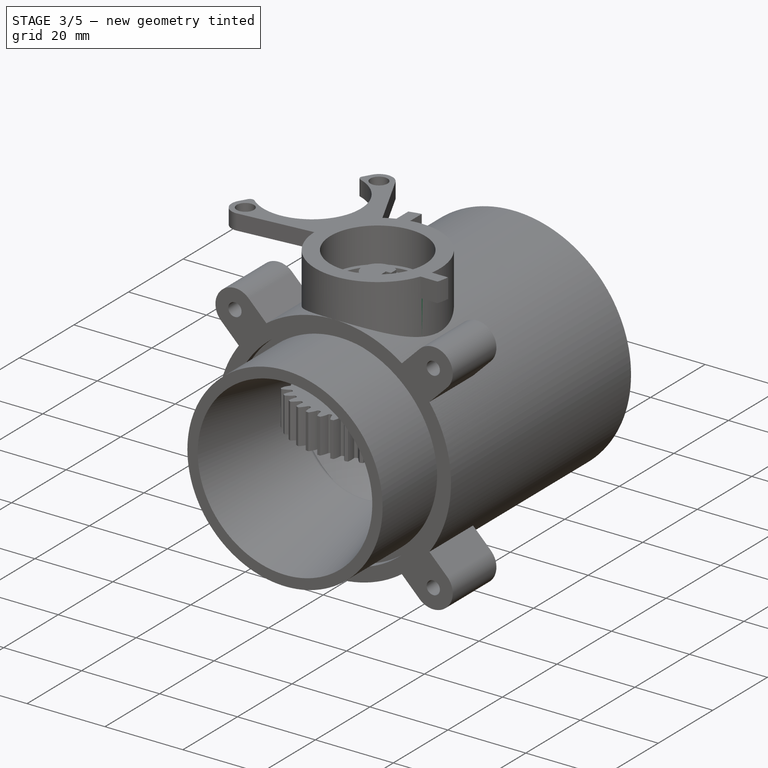
[diagram: stage 3 of 5 — iso view after this stage's code; geometry added in this stage tinted green]
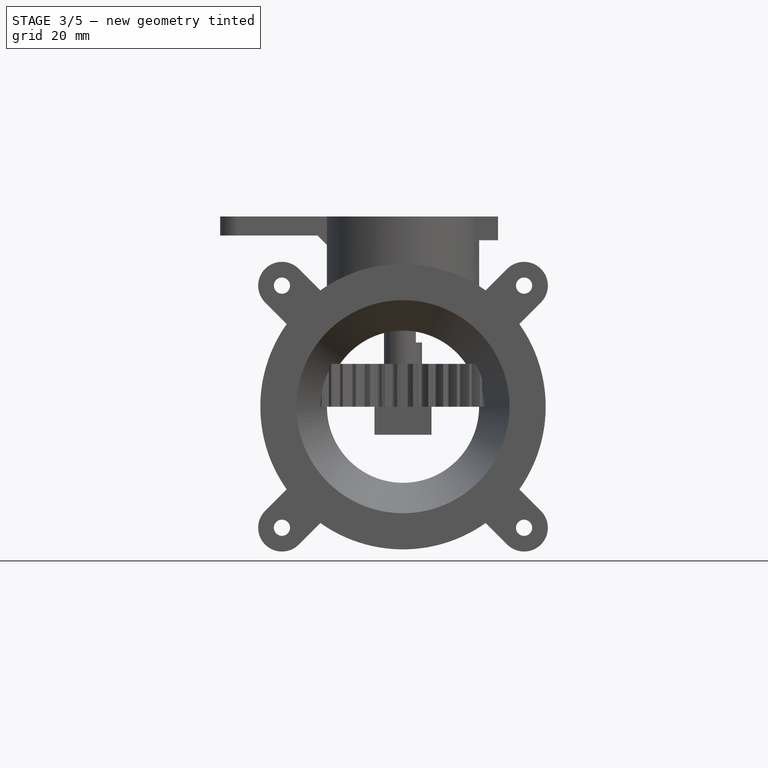
[diagram: stage 3 of 5 — front view after this stage's code; geometry added in this stage tinted green]
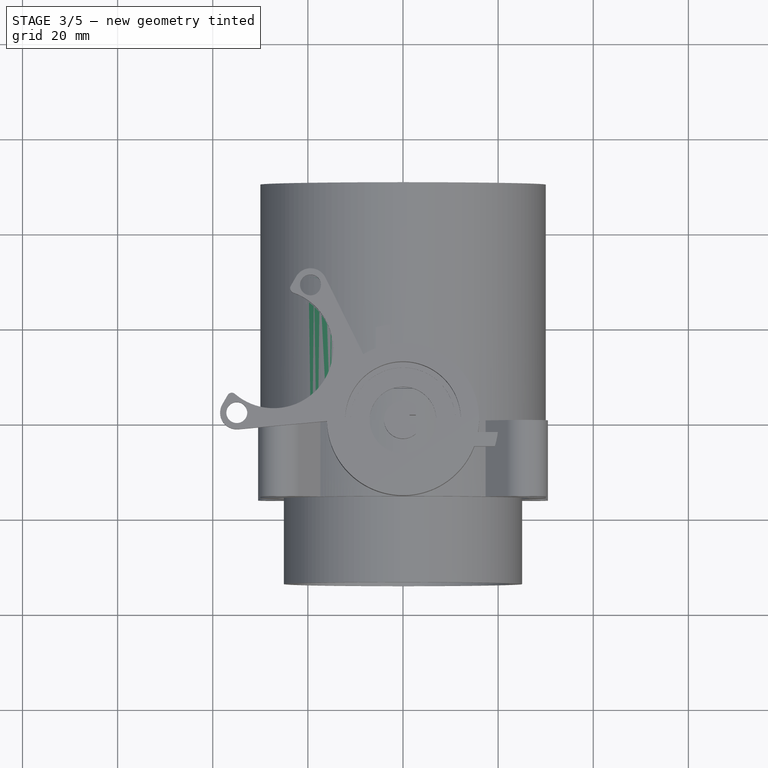
[diagram: stage 3 of 5 — top view after this stage's code; geometry added in this stage tinted green]
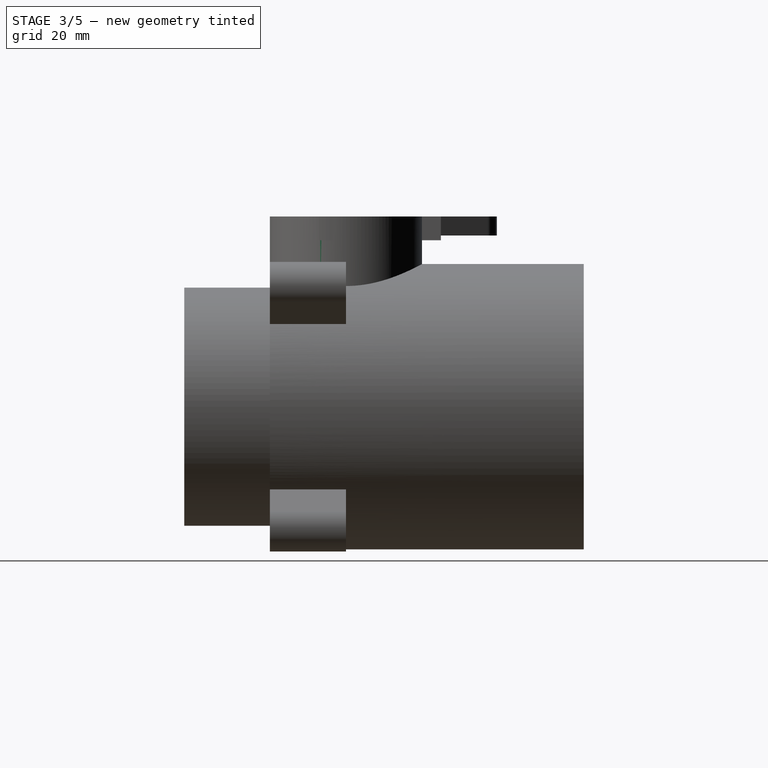
[diagram: stage 3 of 5 — right view after this stage's code; geometry added in this stage tinted green]
FEATURE [PartDesign::Body] Body  label="Body: Ball"
  Group = -> [Sketch,Revolution,Sketch001,Pocket]
  Origin = -> Origin
  Tip = -> Pocket
FEATURE [Sketcher::SketchObject] Sketch002
  FullyConstrained = true
  MapMode = 5
  Placement = pos=(0,0,0) rot=(1,0,0;1.5708rad)
  Support = -> [XZ_Plane001]
  sketch-geometry (1):
    g0: Circle CenterX=0 CenterY=0 CenterZ=0 NormalX=0 NormalY=0 NormalZ=1 AngleXU=0 Radius=30
  constraints (2):
    c: Coincident(g0,g-1)
    c: Diameter(g0) = 60
FEATURE [PartDesign::Pad] Pad
  Direction = (0,-1,-2e-16)
  Length = 16
  Length2 = 30
  Placement = pos=(0,0,0) rot=(1,0,0;1.5708rad)
  Profile = -> Sketch002
  ReferenceAxis = -> Sketch002 [N_Axis]
  Type = 4
FEATURE [Sketcher::SketchObject] Sketch003
  FullyConstrained = true
  MapMode = 5
  Placement = pos=(0,0,0) rot=(1,0,0;1.5708rad)
  Support = -> [XZ_Plane001]
  sketch-geometry (3):
    g0: LineSegment StartX=0 StartY=0 StartZ=0 EndX=8.4e-15 EndY=27.5 EndZ=0
    g1: LineSegment StartX=0 StartY=0 StartZ=0 EndX=0 EndY=-27.5 EndZ=0
    g2: ArcOfCircle CenterX=0 CenterY=0 CenterZ=0 NormalX=0 NormalY=0 NormalZ=1 AngleXU=0 Radius=27.5 StartAngle=4.71239 EndAngle=7.85398
  constraints (8):
    c: Coincident(g0,g-1)
    c: PointOnObject(g0,g-2)
    c: Coincident(g1,g0)
    c: PointOnObject(g1,g-2)
    c: Coincident(g2,g0)
    c: Coincident(g2,g0)
    c: Coincident(g2,g1)
    c: Diameter(g2) = 55
FEATURE [PartDesign::Groove] Groove
  Angle = 360
  Axis = (0,-2e-16,1)
  Base = (0,0,0)
  BaseFeature = -> Pad
  Placement = pos=(0,0,0) rot=(1,0,0;1.5708rad)
  Profile = -> Sketch003
  ReferenceAxis = -> Sketch003 [V_Axis]
FEATURE [Sketcher::SketchObject] Sketch004
  FullyConstrained = true
  MapMode = 5
  Placement = pos=(0,0,0) rot=(1,0,0;1.5708rad)
  Support = -> [XZ_Plane001]
  sketch-geometry (1):
    g0: Circle CenterX=0 CenterY=0 CenterZ=0 NormalX=0 NormalY=0 NormalZ=1 AngleXU=0 Radius=16
  constraints (2):
    c: Coincident(g0,g-1)
    c: Diameter(g0) = 32
FEATURE [PartDesign::Pocket] Pocket001
  BaseFeature = -> Groove
  Direction = (0,1,2e-16)
  Length = 5
  Length2 = 5
  Placement = pos=(0,0,0) rot=(1,0,0;1.5708rad)
  Profile = -> Sketch004
  ReferenceAxis = -> Sketch004 [N_Axis]
  Type = 1
FEATURE [Sketcher::SketchObject] Sketch005
  FullyConstrained = true
  MapMode = 5
  Placement = pos=(0,0,0) rot=(0.57735,0.57735,0.57735;2.0944rad)
  Support = -> [YZ_Plane001]
  sketch-geometry (6):
    g0: Circle CenterX=0 CenterY=0 CenterZ=0 NormalX=0 NormalY=0 NormalZ=1 AngleXU=0 Radius=26.15
    g1: Circle CenterX=0 CenterY=0 CenterZ=0 NormalX=0 NormalY=0 NormalZ=1 AngleXU=0 Radius=27.5
    g2: LineSegment StartX=22.3663 StartY=16 StartZ=0 EndX=20.6839 EndY=16 EndZ=0
    g3: LineSegment StartX=19.7324 StartY=17.1596 StartZ=0 EndX=20.1529 EndY=18.7113 EndZ=0
    g4: ArcOfCircle CenterX=0 CenterY=0 CenterZ=0 NormalX=0 NormalY=0 NormalZ=1 AngleXU=0 Radius=26.15 StartAngle=0.658403 EndAngle=0.715773
    g5: ArcOfCircle CenterX=0 CenterY=0 CenterZ=0 NormalX=0 NormalY=0 NormalZ=1 AngleXU=0 Radius=27.5 StartAngle=0.620962 EndAngle=0.748321
  constraints (16):
    c: Coincident(g0,g-1)
    c: Coincident(g1,g0)
    c: Diameter(g0) = 52.3
    c: Diameter(g1) = 55
    c: PointOnObject(g2,g1)
    c: PointOnObject(g2,g0)
    c: Horizontal(g2)
    c: Coincident(g4,g0)
    c: Coincident(g4,g2)
    c: Coincident(g4,g3)
    c: Coincident(g5,g4)
    c: Coincident(g5,g2)
    c: Coincident(g5,g3)
    c: Distance(g2,g3) = 1.5
    c: Distance(g2,g3) = 3.5
    c: DistanceY(g4,g2) = 16
FEATURE [PartDesign::Revolution] Revolution001
  Angle = 360
  Axis = (3e-16,1,-2e-16)
  Base = (0,0,0)
  BaseFeature = -> Pocket001
  Placement = pos=(0,0,0) rot=(1,0,0;1.5708rad)
  Profile = -> Sketch005
  ReferenceAxis = -> Sketch005 [H_Axis]
FEATURE [Sketcher::SketchObject] Sketch006
  FullyConstrained = true
  MapMode = 5
  Placement = pos=(0,0,0) rot=(1,0,0;1.5708rad)
  Support = -> [XZ_Plane001]
  sketch-geometry (4):
    g0: LineSegment StartX=1.8e-15 StartY=30 StartZ=0 EndX=0 EndY=40 EndZ=0
    g1: ArcOfCircle CenterX=0 CenterY=0 CenterZ=0 NormalX=0 NormalY=0 NormalZ=1 AngleXU=0 Radius=30 StartAngle=1.00826 EndAngle=1.5708
    g2: LineSegment StartX=16 StartY=25.3772 StartZ=0 EndX=16 EndY=40 EndZ=0
    g3: LineSegment StartX=16 StartY=40 StartZ=0 EndX=0 EndY=40 EndZ=0
  constraints (12):
    c: PointOnObject(g0,g-2)
    c: PointOnObject(g0,g-2)
    c: Coincident(g1,g-1)
    c: Coincident(g1,g0)
    c: Coincident(g2,g1)
    c: Vertical(g2)
    c: Coincident(g3,g2)
    c: Coincident(g3,g0)
    c: Horizontal(g3)
    c: Distance(g3) = 16
    c: Diameter(g1) = 60
    c: Distance(g0) = 10
FEATURE [PartDesign::Revolution] Revolution002
  Angle = 360
  Axis = (0,-2e-16,1)
  Base = (0,0,0)
  BaseFeature = -> Revolution001
  Placement = pos=(0,0,0) rot=(1,0,0;1.5708rad)
  Profile = -> Sketch006
  ReferenceAxis = -> Sketch006 [V_Axis]
  Reversed = true
FEATURE [Sketcher::SketchObject] Sketch007
  FullyConstrained = true
  MapMode = 5
  Placement = pos=(0,8.9e-15,40) rot=(0,0,1;3.14159rad)
  Support = -> [Revolution002]
  sketch-geometry (1):
    g0: Circle CenterX=0 CenterY=0 CenterZ=0 NormalX=0 NormalY=0 NormalZ=1 AngleXU=0 Radius=12.15
  constraints (2):
    c: Coincident(g0,g-1)
    c: Diameter(g0) = 24.3
FEATURE [PartDesign::Pocket] Pocket002
  BaseFeature = -> Revolution002
  Direction = (0,2e-16,-1)
  Length = 9
  Length2 = 5
  Placement = pos=(0,0,0) rot=(1,0,0;1.5708rad)
  Profile = -> Sketch007
  ReferenceAxis = -> Sketch007 [N_Axis]
  Type = 0
FEATURE [Sketcher::SketchObject] Sketch008
  FullyConstrained = true
  MapMode = 5
  Placement = pos=(0,6.9e-15,31) rot=(0,0,1;3.14159rad)
  Support = -> [Pocket002]
  sketch-geometry (1):
    g0: Circle CenterX=0 CenterY=0 CenterZ=0 NormalX=0 NormalY=0 NormalZ=1 AngleXU=0 Radius=11
  constraints (2):
    c: Coincident(g0,g-1)
    c: Diameter(g0) = 22
FEATURE [PartDesign::Pocket] Pocket003
  BaseFeature = -> Pocket002
  Direction = (0,0,-1)
  Length = 1
  Length2 = 5
  Placement = pos=(0,0,0) rot=(1,0,0;1.5708rad)
  Profile = -> Sketch008
  ReferenceAxis = -> Sketch008 [N_Axis]
  Type = 0
FEATURE [Sketcher::SketchObject] Sketch009
  FullyConstrained = true
  MapMode = 5
  Placement = pos=(0,6.7e-15,30) rot=(0,0,1;3.14159rad)
  Support = -> [Pocket003]
  sketch-geometry (1):
    g0: Circle CenterX=0 CenterY=0 CenterZ=0 NormalX=0 NormalY=0 NormalZ=1 AngleXU=0 Radius=7
  constraints (2):
    c: Coincident(g0,g-1)
    c: Diameter(g0) = 14
FEATURE [PartDesign::Pocket] Pocket004
  BaseFeature = -> Pocket003
  Direction = (0,0,-1)
  Length = 10
  Length2 = 5
  Placement = pos=(0,0,0) rot=(1,0,0;1.5708rad)
  Profile = -> Sketch009
  ReferenceAxis = -> Sketch009 [N_Axis]
  Type = 0
FEATURE [PartDesign::Body] Body003  label="Body003: Shaft"
  Group = -> [Sketch011,Pad002,Sketch012,Pad003,Sketch013,Pocket005,Sketch014,Pocket006,Sketch015,Pad004]
  Origin = -> Origin003
  Placement = pos=(0,0,27) rot=(0,0,1;0rad)
  Tip = -> Pad004
FEATURE [Sketcher::SketchObject] Sketch016
  FullyConstrained = true
  MapMode = 5
  Placement = pos=(0,0,0) rot=(1,0,0;1.5708rad)
  Support = -> [XZ_Plane001]
  sketch-geometry (1):
    g0: Circle CenterX=0 CenterY=0 CenterZ=0 NormalX=0 NormalY=0 NormalZ=1 AngleXU=0 Radius=26.5
  constraints (2):
    c: Coincident(g0,g-1)
    c: Diameter(g0) = 53
FEATURE [PartDesign::Pocket] Pocket007
  BaseFeature = -> Pocket004
  Direction = (0,1,2e-16)
  Length = 5
  Length2 = 5
  Placement = pos=(0,0,0) rot=(1,0,0;1.5708rad)
  Profile = -> Sketch016
  ReferenceAxis = -> Sketch016 [N_Axis]
  Reversed = true
  Type = 1
FEATURE [Sketcher::SketchObject] Sketch021
  FullyConstrained = true
  MapMode = 5
  Placement = pos=(0,0,0) rot=(1,0,0;1.5708rad)
  Support = -> [XZ_Plane001]
  sketch-geometry (8):
    g0: ArcOfCircle CenterX=0 CenterY=0 CenterZ=0 NormalX=0 NormalY=0 NormalZ=1 AngleXU=0 Radius=26.2 StartAngle=4.48133 EndAngle=4.52037
    g1: ArcOfCircle CenterX=0 CenterY=0 CenterZ=0 NormalX=0 NormalY=0 NormalZ=1 AngleXU=0 Radius=27.5 StartAngle=4.48133 EndAngle=4.71239
    g2: LineSegment StartX=-6 StartY=-25.5037 StartZ=0 EndX=-6.29771 EndY=-26.7692 EndZ=0
    g3: LineSegment StartX=-4.9e-15 StartY=-26.8 StartZ=0 EndX=-5.1e-15 EndY=-27.5 EndZ=0
    g4: LineSegment StartX=-6 StartY=-25.5037 StartZ=0 EndX=0 EndY=-25.5037 EndZ=0
    g5: LineSegment StartX=-5 StartY=-25.7185 StartZ=0 EndX=-5.1145 EndY=-26.3074 EndZ=0
    g6: ArcOfCircle CenterX=0 CenterY=0 CenterZ=0 NormalX=0 NormalY=0 NormalZ=1 AngleXU=0 Radius=26.8 StartAngle=4.52037 EndAngle=4.71239
    g7: LineSegment StartX=-5 StartY=-25.7185 StartZ=0 EndX=0 EndY=-25.7185 EndZ=0
  constraints (24):
    c: Coincident(g0,g-1)
    c: Diameter(g0) = 52.4
    c: Coincident(g1,g0)
    c: Diameter(g1) = 55
    c: Coincident(g2,g0)
    c: Coincident(g2,g1)
    c: Coincident(g3,g1)
    c: Perpendicular(g0,g2)
    c: Perpendicular(g0,g3)
    c: Coincident(g4,g0)
    c: PointOnObject(g4,g-2)
    c: Horizontal(g4)
    c: Distance(g4) = 6
    c: Coincident(g6,g0)
    c: Coincident(g6,g5)
    c: Coincident(g0,g5)
    c: Coincident(g3,g6)
    c: Perpendicular(g0,g5)
    c: Coincident(g7,g0)
    c: PointOnObject(g7,g-2)
    c: Horizontal(g7)
    c: Distance(g7) = 5
    c: Distance(g5) = 0.6
    c: PointOnObject(g1,g-2)
FEATURE [PartDesign::Revolution] Revolution004
  Angle = 360
  Axis = (0,-2e-16,1)
  Base = (0,0,0)
  BaseFeature = -> Pocket007
  Placement = pos=(0,0,0) rot=(1,0,0;1.5708rad)
  Profile = -> Sketch021
  ReferenceAxis = -> Sketch021 [V_Axis]
FEATURE [PartDesign::Chamfer] Chamfer
  Angle = 45
  Base = -> Revolution004 [Edge8]
  BaseFeature = -> Revolution004
  ChamferType = 0
  FlipDirection = false
  Placement = pos=(0,0,0) rot=(1,0,0;1.5708rad)
  Size = 6
  Size2 = 1
  SupportTransform = false
  UseAllEdges = false
FEATURE [Sketcher::SketchObject] Sketch024
  FullyConstrained = true
  MapMode = 5
  Placement = pos=(0,30,-1e-16) rot=(-1,0,0;1.5708rad)
  Support = -> [Chamfer]
  sketch-geometry (2):
    g0: Circle CenterX=0 CenterY=0 CenterZ=0 NormalX=0 NormalY=0 NormalZ=1 AngleXU=0 Radius=30
    g1: Circle CenterX=0 CenterY=0 CenterZ=0 NormalX=0 NormalY=0 NormalZ=1 AngleXU=0 Radius=25.2
  constraints (4):
    c: Coincident(g0,g-1)
    c: Coincident(g1,g0)
    c: Diameter(g0) = 60
    c: Diameter(g1) = 50.4
FEATURE [PartDesign::Pad] Pad007
  BaseFeature = -> Chamfer
  Direction = (0,1,2e-16)
  Length = 20
  Length2 = 10
  Placement = pos=(0,0,0) rot=(1,0,0;1.5708rad)
  Profile = -> Sketch024
  ReferenceAxis = -> Sketch024 [N_Axis]
  Type = 0
FEATURE [Sketcher::SketchObject] Sketch065
  FullyConstrained = true
  MapMode = 5
  Placement = pos=(0,0,0) rot=(0.57735,0.57735,0.57735;2.0944rad)
  Support = -> [YZ_Plane011]
  sketch-geometry (2):
    g0: ArcOfCircle CenterX=16 CenterY=0 CenterZ=0 NormalX=0 NormalY=0 NormalZ=1 AngleXU=0 Radius=27.5 StartAngle=0 EndAngle=3.14159
    g1: LineSegment StartX=-11.5 StartY=3.4e-15 StartZ=0 EndX=43.5 EndY=0 EndZ=0
  constraints (7):
    c: PointOnObject(g0,g-1)
    c: PointOnObject(g0,g-1)
    c: PointOnObject(g0,g-1)
    c: Diameter(g0) = 55
    c: Distance(g0,g-1) = 16
    c: Coincident(g1,g0)
    c: Coincident(g1,g0)
FEATURE [PartDesign::Groove] Groove003
  Angle = 360
  Axis = (3e-16,1,-2e-16)
  Base = (0,0,0)
  BaseFeature = -> Pad026
  Placement = pos=(0,0,0) rot=(1,0,0;1.5708rad)
  Profile = -> Sketch065
  ReferenceAxis = -> Sketch065 [H_Axis]
  Reversed = true
FEATURE [Sketcher::SketchObject] Sketch066
  FullyConstrained = true
  MapMode = 5
  Placement = pos=(0,0,0) rot=(1,0,0;1.5708rad)
  Support = -> [XZ_Plane011]
  sketch-geometry (1):
    g0: Circle CenterX=0 CenterY=0 CenterZ=0 NormalX=0 NormalY=0 NormalZ=1 AngleXU=0 Radius=16
  constraints (2):
    c: Coincident(g0,g-1)
    c: Diameter(g0) = 32
FEATURE [PartDesign::Pocket] Pocket020
  BaseFeature = -> Groove003
  Direction = (0,1,-2e-16)
  Length = 5
  Length2 = 5
  Midplane = true
  Placement = pos=(0,0,0) rot=(1,0,0;1.5708rad)
  Profile = -> Sketch066
  ReferenceAxis = -> Sketch066 [N_Axis]
  Type = 1
FEATURE [Sketcher::SketchObject] Sketch067
  FullyConstrained = true
  MapMode = 5
  Placement = pos=(0,0,0) rot=(0.57735,0.57735,0.57735;2.0944rad)
  Support = -> [YZ_Plane011]
  sketch-geometry (7):
    g0: LineSegment StartX=0 StartY=0 StartZ=0 EndX=16 EndY=0 EndZ=0
    g1: Circle CenterX=16 CenterY=0 CenterZ=0 NormalX=0 NormalY=0 NormalZ=1 AngleXU=0 Radius=26.15
    g2: Circle CenterX=16 CenterY=0 CenterZ=0 NormalX=0 NormalY=0 NormalZ=1 AngleXU=0 Radius=27.5
    g3: LineSegment StartX=-6.36627 StartY=16 StartZ=0 EndX=-4.68387 EndY=16 EndZ=0
    g4: ArcOfCircle CenterX=16 CenterY=0 CenterZ=0 NormalX=0 NormalY=0 NormalZ=1 AngleXU=0 Radius=26.15 StartAngle=2.42582 EndAngle=2.48319
    g5: ArcOfCircle CenterX=16 CenterY=0 CenterZ=0 NormalX=0 NormalY=0 NormalZ=1 AngleXU=0 Radius=27.5 StartAngle=2.39327 EndAngle=2.52063
    g6: LineSegment StartX=-4.15288 StartY=18.7113 StartZ=0 EndX=-3.73244 EndY=17.1596 EndZ=0
  constraints (19):
    c: Coincident(g0,g-1)
    c: PointOnObject(g0,g-1)
    c: Distance(g0) = 16
    c: Coincident(g1,g0)
    c: Coincident(g2,g0)
    c: Diameter(g1) = 52.3
    c: Diameter(g2) = 55
    c: PointOnObject(g3,g2)
    c: PointOnObject(g3,g1)
    c: Horizontal(g3)
    c: DistanceY(g0,g3) = 16
    c: Coincident(g4,g0)
    c: Coincident(g4,g3)
    c: Coincident(g5,g4)
    c: Coincident(g5,g3)
    c: Coincident(g6,g5)
    c: Coincident(g6,g4)
    c: Distance(g3,g4) = 1.5
    c: Distance(g5,g3) = 3.5
FEATURE [PartDesign::Revolution] Revolution008
  Angle = 360
  Axis = (3e-16,1,-2e-16)
  Base = (0,0,0)
  BaseFeature = -> Pocket020
  Placement = pos=(0,0,0) rot=(1,0,0;1.5708rad)
  Profile = -> Sketch067
  ReferenceAxis = -> Sketch067 [H_Axis]
FEATURE [Sketcher::SketchObject] Sketch068
  FullyConstrained = true
  MapMode = 5
  Placement = pos=(0,-14,6e-15) rot=(1,0,0;1.5708rad)
  sketch-geometry (2):
    g0: Circle CenterX=0 CenterY=0 CenterZ=0 NormalX=0 NormalY=0 NormalZ=1 AngleXU=0 Radius=16
    g1: Circle CenterX=0 CenterY=0 CenterZ=0 NormalX=0 NormalY=0 NormalZ=1 AngleXU=0 Radius=25.05
  constraints (4):
    c: Coincident(g0,g-1)
    c: Coincident(g1,g0)
    c: Diameter(g1) = 50.1
    c: Diameter(g0) = 32
FEATURE [PartDesign::Pad] Pad027
  BaseFeature = -> Revolution008
  Direction = (0,-1,4e-16)
  Length = 20
  Length2 = 10
  Placement = pos=(0,0,0) rot=(1,0,0;1.5708rad)
  Profile = -> Sketch068
  ReferenceAxis = -> Sketch068 [N_Axis]
  Type = 0
FEATURE [Sketcher::SketchObject] Sketch069
  FullyConstrained = true
  MapMode = 5
  Placement = pos=(0,0,0) rot=(1,0,0;1.5708rad)
  Support = -> [XZ_Plane011]
  sketch-geometry (6):
    g0: LineSegment StartX=0 StartY=0 StartZ=0 EndX=25.4558 EndY=25.4558 EndZ=0
    g1: Circle CenterX=25.4558 CenterY=25.4558 CenterZ=0 NormalX=0 NormalY=0 NormalZ=1 AngleXU=0 Radius=1.7
    g2: ArcOfCircle CenterX=25.4558 CenterY=25.4558 CenterZ=0 NormalX=0 NormalY=0 NormalZ=1 AngleXU=0 Radius=5 StartAngle=5.49779 EndAngle=8.63938
    g3: LineSegment StartX=21.9203 StartY=28.9914 StartZ=0 EndX=17.381 EndY=24.452 EndZ=0
    g4: LineSegment StartX=28.9914 StartY=21.9203 StartZ=0 EndX=24.452 EndY=17.381 EndZ=0
    g5: ArcOfCircle CenterX=0 CenterY=0 CenterZ=0 NormalX=0 NormalY=0 NormalZ=1 AngleXU=0 Radius=30 StartAngle=0.61795 EndAngle=0.952846
  constraints (15):
    c: Coincident(g0,g-1)
    c: Angle(g-1,g0) = 0.785398
    c: Distance(g0) = 36
    c: Coincident(g1,g0)
    c: Diameter(g1) = 3.4
    c: Coincident(g2,g1)
    c: Parallel(g3,g0)
    c: Parallel(g0,g4)
    c: Coincident(g5,g0)
    c: Coincident(g5,g3)
    c: Coincident(g5,g4)
    c: Diameter(g5) = 60
    c: Tangent(g4,g2) = 1.5708
    c: Tangent(g3,g2) = -1.5708
    c: Diameter(g2) = 10
FEATURE [PartDesign::Pad] Pad028
  BaseFeature = -> Pad027
  Direction = (0,-1,-2e-16)
  Length = 10
  Length2 = 10
  Placement = pos=(0,0,0) rot=(1,0,0;1.5708rad)
  Profile = -> Sketch069
  ReferenceAxis = -> Sketch069 [N_Axis]
  Type = 0
FEATURE [PartDesign::Fillet] Fillet009
  Base = -> Pad028 [Edge13,Edge12]
  BaseFeature = -> Pad028
  Placement = pos=(0,0,0) rot=(1,0,0;1.5708rad)
  Radius = 1
  SupportTransform = false
  UseAllEdges = false
FEATURE [PartDesign::PolarPattern] PolarPattern003
  Angle = 360
  Axis = -> Sketch069 [N_Axis]
  Occurrences = 4
  Placement = pos=(0,0,0) rot=(1,0,0;1.5708rad)
FEATURE [PartDesign::MultiTransform] MultiTransform003
  BaseFeature = -> Fillet009
  Originals = -> [Pad028,Fillet009]
  Placement = pos=(0,0,0) rot=(1,0,0;1.5708rad)
  Transformations = -> [PolarPattern003]
FEATURE [PartDesign::Chamfer] Chamfer006
  Angle = 45
  Base = -> MultiTransform003 [Edge116]
  BaseFeature = -> MultiTransform003
  ChamferType = 1
  FlipDirection = false
  Placement = pos=(0,0,0) rot=(1,0,0;1.5708rad)
  Size = 6.4
  Size2 = 29
  SupportTransform = false
  UseAllEdges = false
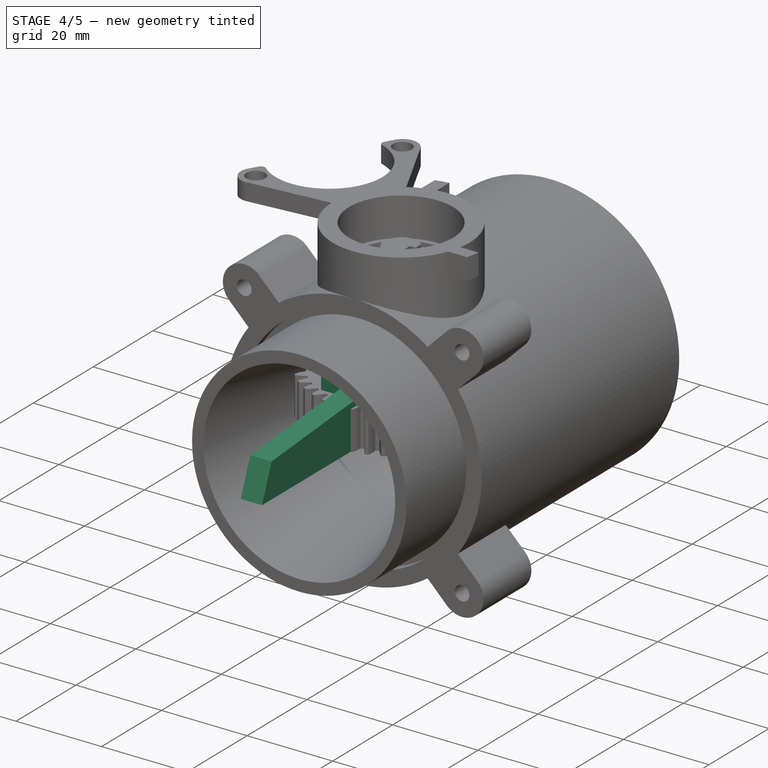
[diagram: stage 4 of 5 — iso view after this stage's code; geometry added in this stage tinted green]
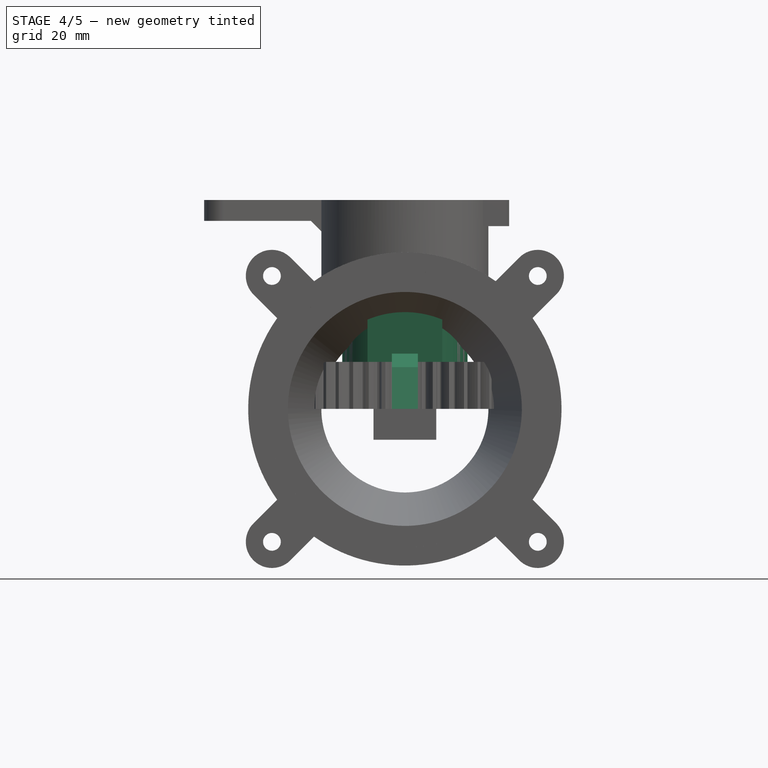
[diagram: stage 4 of 5 — front view after this stage's code; geometry added in this stage tinted green]
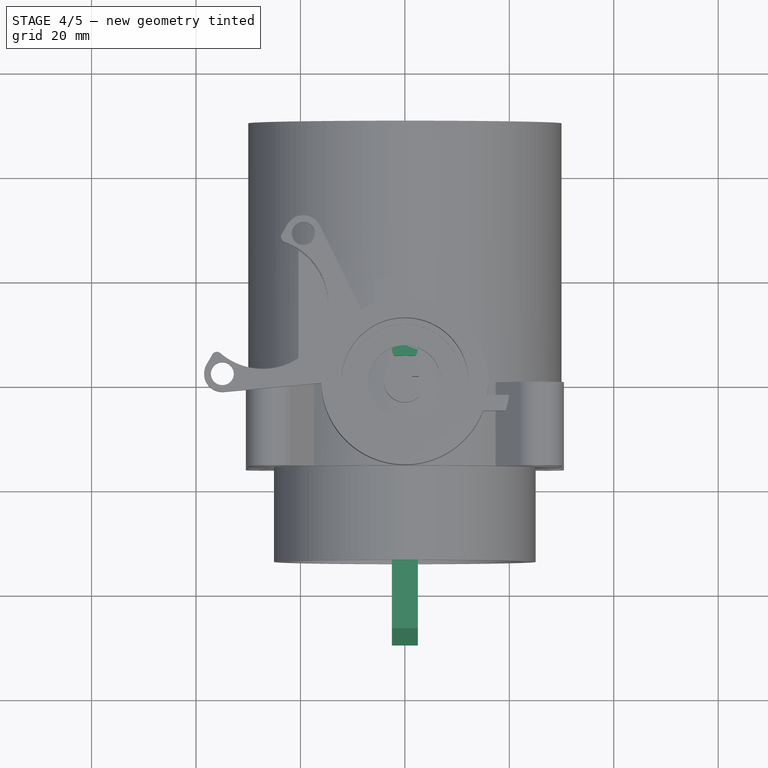
[diagram: stage 4 of 5 — top view after this stage's code; geometry added in this stage tinted green]
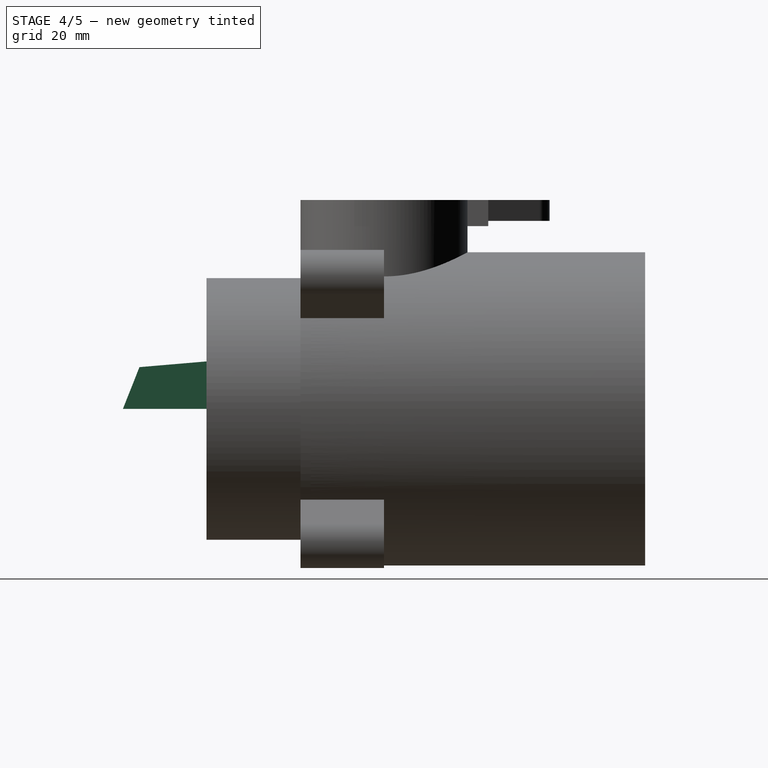
[diagram: stage 4 of 5 — right view after this stage's code; geometry added in this stage tinted green]
FEATURE [PartDesign::Body] Body004  label="Body004: Cap"
  Group = -> [Sketch017,Pad005,Sketch018,Groove001,Sketch019,Pocket008,Sketch020,Revolution003,Chamfer001,Sketch023,Pad006,Sketch025,Pad008,Fillet,MultiTransform,PolarPattern]
  Origin = -> Origin004
  Placement = pos=(0,-16,0) rot=(0,0,1;0rad)
  Tip = -> MultiTransform
FEATURE [Sketcher::SketchObject] Sketch026
  FullyConstrained = true
  MapMode = 5
  Placement = pos=(0,-16,0) rot=(1,0,0;1.5708rad)
  Support = -> [Pad007]
  sketch-geometry (6):
    g0: LineSegment StartX=0 StartY=0 StartZ=0 EndX=25.4558 EndY=25.4558 EndZ=0
    g1: Circle CenterX=25.4558 CenterY=25.4558 CenterZ=0 NormalX=0 NormalY=0 NormalZ=1 AngleXU=0 Radius=1.7
    g2: ArcOfCircle CenterX=25.4558 CenterY=25.4558 CenterZ=0 NormalX=0 NormalY=0 NormalZ=1 AngleXU=0 Radius=5 StartAngle=5.49779 EndAngle=8.63938
    g3: ArcOfCircle CenterX=0 CenterY=0 CenterZ=0 NormalX=0 NormalY=0 NormalZ=1 AngleXU=0 Radius=30 StartAngle=0.61795 EndAngle=0.952846
    g4: LineSegment StartX=17.381 StartY=24.452 StartZ=0 EndX=21.9203 EndY=28.9914 EndZ=0
    g5: LineSegment StartX=24.452 StartY=17.381 StartZ=0 EndX=28.9914 EndY=21.9203 EndZ=0
  constraints (15):
    c: Coincident(g0,g-1)
    c: Angle(g-1,g0) = 0.785398
    c: Coincident(g1,g0)
    c: Diameter(g1) = 3.4
    c: Distance(g0) = 36
    c: Coincident(g2,g1)
    c: Coincident(g3,g0)
    c: Coincident(g4,g3)
    c: Coincident(g5,g3)
    c: Diameter(g3) = 60
    c: Diameter(g2) = 10
    c: Parallel(g5,g0)
    c: Parallel(g4,g0)
    c: Tangent(g4,g2) = 1.5708
    c: Tangent(g5,g2) = -1.5708
FEATURE [PartDesign::Pad] Pad009
  BaseFeature = -> Pad007
  Direction = (0,-1,-2e-16)
  Length = 10
  Length2 = 10
  Placement = pos=(0,0,0) rot=(1,0,0;1.5708rad)
  Profile = -> Sketch026
  ReferenceAxis = -> Sketch026 [N_Axis]
  Reversed = true
  Type = 0
FEATURE [PartDesign::Fillet] Fillet001
  Base = -> Pad009 [Edge35,Edge34,Edge33]
  BaseFeature = -> Pad009
  Placement = pos=(0,0,0) rot=(1,0,0;1.5708rad)
  Radius = 1
  SupportTransform = false
  UseAllEdges = false
FEATURE [PartDesign::PolarPattern] PolarPattern001
  Angle = 360
  Axis = -> Sketch026 [N_Axis]
  Occurrences = 4
  Placement = pos=(0,0,0) rot=(1,0,0;1.5708rad)
FEATURE [PartDesign::MultiTransform] MultiTransform001
  BaseFeature = -> Fillet001
  Originals = -> [Pad009,Fillet001]
  Placement = pos=(0,0,0) rot=(1,0,0;1.5708rad)
  Transformations = -> [PolarPattern001]
FEATURE [Sketcher::SketchObject] Sketch027
  FullyConstrained = false
  MapMode = 5
  Support = -> [XY_Plane005]
  sketch-geometry (1):
    g0: Circle CenterX=0 CenterY=0 CenterZ=0 NormalX=0 NormalY=0 NormalZ=1 AngleXU=0 Radius=7
  constraints (1):
    c: Diameter(g0) = 14
FEATURE [Sketcher::SketchObject] Sketch028
  AttachmentOffset = pos=(0,0,12) rot=(0,0,1;0rad)
  FullyConstrained = true
  MapMode = 5
  Placement = pos=(0,0,12) rot=(0,0,1;0rad)
  Support = -> [XY_Plane005]
  sketch-geometry (1):
    g0: Circle CenterX=0 CenterY=0 CenterZ=0 NormalX=0 NormalY=0 NormalZ=1 AngleXU=0 Radius=6
  constraints (2):
    c: Coincident(g0,g-1)
    c: Diameter(g0) = 12
FEATURE [PartDesign::AdditiveLoft] AdditiveLoft
  Closed = false
  Profile = -> Sketch028
  Ruled = false
  Sections = -> [Sketch027]
FEATURE [Sketcher::SketchObject] Sketch029
  FullyConstrained = true
  MapMode = 5
  Placement = pos=(0,0,0) rot=(0.57735,0.57735,0.57735;2.0944rad)
  Support = -> [YZ_Plane005]
  sketch-geometry (6):
    g0: LineSegment StartX=0 StartY=12 StartZ=0 EndX=46.8295 EndY=8 EndZ=0
    g1: LineSegment StartX=0 StartY=0 StartZ=0 EndX=50 EndY=0 EndZ=0
    g2: LineSegment StartX=46.8295 StartY=8 StartZ=0 EndX=50 EndY=0 EndZ=0
    g3: LineSegment StartX=0 StartY=0 StartZ=0 EndX=-50 EndY=0 EndZ=0
    g4: LineSegment StartX=-50 StartY=0 StartZ=0 EndX=-46.8295 EndY=8 EndZ=0
    g5: LineSegment StartX=-46.8295 StartY=8 StartZ=0 EndX=0 EndY=12 EndZ=0
  constraints (17):
    c: PointOnObject(g0,g-2)
    c: Coincident(g1,g-1)
    c: PointOnObject(g1,g-1)
    c: Coincident(g2,g0)
    c: Coincident(g2,g1)
    c: Coincident(g3,g1)
    c: PointOnObject(g3,g-1)
    c: Coincident(g4,g3)
    c: Coincident(g5,g4)
    c: Coincident(g5,g0)
    c: Equal(g1,g3)
    c: Equal(g4,g2)
    c: Equal(g0,g5)
    c: Distance(g1) = 50
    c: Distance(g0) = 47
    c: Distance(g0,g1) = 12
    c: Distance(g0,g1) = 8
FEATURE [PartDesign::Pad] Pad010
  BaseFeature = -> AdditiveLoft
  Direction = (1,-2e-16,3e-16)
  Length = 5
  Length2 = 10
  Midplane = true
  Profile = -> Sketch029
  ReferenceAxis = -> Sketch029 [N_Axis]
  Type = 0
FEATURE [PartDesign::Fillet] Fillet002
  Base = -> Pad010 [Edge1]
  BaseFeature = -> Pad010
  Radius = 0.5
  SupportTransform = false
  UseAllEdges = false
FEATURE [PartDesign::Body] Body005  label="Body005: Handle"
  Group = -> [Sketch027,Sketch028,AdditiveLoft,Sketch029,Pad010,Fillet002,Fillet003,Fillet004,Sketch030,Pocket009]
  Origin = -> Origin005
  Placement = pos=(0,0,54) rot=(0,0,1;0rad)
  Tip = -> Pocket009
FEATURE [Sketcher::SketchObject] Sketch031
  FullyConstrained = true
  MapMode = 5
  Support = -> [XY_Plane006]
  sketch-geometry (14):
    g0: ArcOfCircle CenterX=0 CenterY=0 CenterZ=0 NormalX=0 NormalY=0 NormalZ=1 AngleXU=0 Radius=7 StartAngle=1.936 EndAngle=7.48877
    g1: LineSegment StartX=-2.5 StartY=6.53835 StartZ=0 EndX=-2.5 EndY=20 EndZ=0
    g2: LineSegment StartX=2.5 StartY=6.53835 StartZ=0 EndX=2.5 EndY=20 EndZ=0
    g3: LineSegment StartX=2.5 StartY=20 StartZ=0 EndX=-2.5 EndY=20 EndZ=0
    g4: LineSegment StartX=0 StartY=0 StartZ=0 EndX=0 EndY=20 EndZ=0
    g5: ArcOfCircle CenterX=0 CenterY=0 CenterZ=0 NormalX=0 NormalY=0 NormalZ=1 AngleXU=0 Radius=4 StartAngle=0.795399 EndAngle=5.48779
    g6: LineSegment StartX=2.8 StartY=-2.85657 StartZ=0 EndX=2.8 EndY=-0.85 EndZ=0
    g7: LineSegment StartX=2.8 StartY=-0.85 StartZ=0 EndX=1.5 EndY=-0.85 EndZ=0
    g8: LineSegment StartX=1.5 StartY=-0.85 StartZ=0 EndX=1.5 EndY=0.85 EndZ=0
    g9: LineSegment StartX=1.5 StartY=0.85 StartZ=0 EndX=2.8 EndY=0.85 EndZ=0
    g10: LineSegment StartX=2.8 StartY=0.85 StartZ=0 EndX=2.8 EndY=2.85657 EndZ=0
    g11: LineSegment StartX=-4 StartY=0 StartZ=0 EndX=1.5 EndY=0 EndZ=0
    g12: LineSegment StartX=2.8 StartY=-0.85 StartZ=0 EndX=2.8 EndY=0.85 EndZ=0
    g13: LineSegment StartX=2.8 StartY=0 StartZ=0 EndX=-4 EndY=0 EndZ=0
  constraints (43):
    c: Vertical(g1)
    c: Vertical(g2)
    c: Coincident(g3,g2)
    c: Coincident(g3,g1)
    c: Horizontal(g3)
    c: Coincident(g0,g2)
    c: Coincident(g0,g1)
    c: Diameter(g0) = 14
    c: Distance(g3) = 5
    c: Equal(g1,g2)
    c: Coincident(g4,g0)
    c: Vertical(g4)
    c: Distance(g4) = 20
    c: PointOnObject(g4,g3)
    c: Coincident(g0,g-1)
    c: Coincident(g5,g0)
    c: Diameter(g5) = 8
    c: Vertical(g6)
    c: Coincident(g7,g6)
    c: Horizontal(g7)
    c: Vertical(g8)
    c: Coincident(g9,g8)
    c: Horizontal(g9)
    c: Coincident(g10,g9)
    c: Vertical(g10)
    c: PointOnObject(g11,g5)
    c: PointOnObject(g11,g8)
    c: Horizontal(g11)
    c: Perpendicular(g5,g11)
    c: Distance(g11) = 5.5
    c: Coincident(g12,g6)
    c: Coincident(g12,g9)
    c: Vertical(g12)
    c: PointOnObject(g13,g12)
    c: PointOnObject(g13,g5)
    c: Horizontal(g13)
    c: Perpendicular(g5,g13)
    c: Distance(g13) = 6.8
    c: Distance(g12) = 1.7
    c: Equal(g10,g6)
    c: Coincident(g7,g8)
    c: Coincident(g5,g6)
    c: Coincident(g5,g10)
FEATURE [PartDesign::Pad] Pad011
  Direction = (0,0,1)
  Length = 2
  Length2 = 10
  Profile = -> Sketch031
  ReferenceAxis = -> Sketch031 [N_Axis]
  Type = 0
FEATURE [Sketcher::SketchObject] Sketch032
  FullyConstrained = true
  MapMode = 5
  Placement = pos=(0,0,0) rot=(1,0,0;3.14159rad)
  Support = -> [Pad011]
  sketch-geometry (5):
    g0: LineSegment StartX=0 StartY=-20 StartZ=0 EndX=2.5 EndY=-20 EndZ=0
    g1: LineSegment StartX=0 StartY=-20 StartZ=0 EndX=-2.5 EndY=-20 EndZ=0
    g2: LineSegment StartX=-2.5 StartY=-20 StartZ=0 EndX=-2.5 EndY=-16.8152 EndZ=0
    g3: LineSegment StartX=2.5 StartY=-20 StartZ=0 EndX=2.5 EndY=-16.8152 EndZ=0
    g4: ArcOfCircle CenterX=0 CenterY=0 CenterZ=0 NormalX=0 NormalY=0 NormalZ=1 AngleXU=0 Radius=17 StartAngle=4.56479 EndAngle=4.85998
  constraints (15):
    c: PointOnObject(g0,g-2)
    c: Horizontal(g0)
    c: Coincident(g1,g0)
    c: Horizontal(g1)
    c: Coincident(g2,g1)
    c: Vertical(g2)
    c: Coincident(g3,g0)
    c: Vertical(g3)
    c: Coincident(g4,g-1)
    c: Coincident(g4,g3)
    c: Coincident(g4,g2)
    c: Equal(g3,g2)
    c: Distance(g0,g1) = 5
    c: Diameter(g4) = 34
    c: Distance(g4,g0) = 20
FEATURE [PartDesign::Pad] Pad012
  BaseFeature = -> Pad011
  Direction = (0,0,-1)
  Length = 5
  Length2 = 10
  Profile = -> Sketch032
  ReferenceAxis = -> Sketch032 [N_Axis]
  Type = 0
FEATURE [PartDesign::Body] Body006  label="Body006: Ball stop"
  Group = -> [Sketch031,Pad011,Sketch032,Pad012]
  Origin = -> Origin006
  Placement = pos=(0,0,40.5) rot=(0,0,1;0rad)
  Tip = -> Pad012
FEATURE [Sketcher::SketchObject] Sketch033
  FullyConstrained = true
  MapMode = 5
  Placement = pos=(0,8.9e-15,40) rot=(0,0,1;3.14159rad)
  Support = -> [MultiTransform001]
  sketch-geometry (8):
    g0: ArcOfCircle CenterX=0 CenterY=0 CenterZ=0 NormalX=0 NormalY=0 NormalZ=1 AngleXU=0 Radius=16 StartAngle=4.88195 EndAngle=5.07664
    g1: LineSegment StartX=2.7 StartY=-15.7705 StartZ=0 EndX=2.7 EndY=-19.9683 EndZ=0
    g2: LineSegment StartX=5.7 StartY=-14.9503 StartZ=0 EndX=5.7 EndY=-19.327 EndZ=0
    g3: ArcOfCircle CenterX=0 CenterY=0 CenterZ=0 NormalX=0 NormalY=0 NormalZ=1 AngleXU=0 Radius=20.15 StartAngle=4.84679 EndAngle=4.99918
    g4: ArcOfCircle CenterX=0 CenterY=0 CenterZ=0 NormalX=0 NormalY=0 NormalZ=1 AngleXU=0 Radius=16 StartAngle=2.77734 EndAngle=2.97203
    g5: ArcOfCircle CenterX=0 CenterY=0 CenterZ=0 NormalX=0 NormalY=0 NormalZ=1 AngleXU=0 Radius=20.15 StartAngle=2.8548 EndAngle=3.00719
    g6: LineSegment StartX=-19.9683 StartY=2.7 StartZ=0 EndX=-15.7705 EndY=2.7 EndZ=0
    g7: LineSegment StartX=-14.9503 StartY=5.7 StartZ=0 EndX=-19.327 EndY=5.7 EndZ=0
  constraints (24):
    c: Coincident(g0,g-1)
    c: Diameter(g0) = 32
    c: Coincident(g1,g0)
    c: Vertical(g1)
    c: Coincident(g2,g0)
    c: Vertical(g2)
    c: Coincident(g3,g0)
    c: Coincident(g3,g1)
    c: Coincident(g3,g2)
    c: Diameter(g3) = 40.3
    c: Distance(g0,g-2) = 2.7
    c: Distance(g2,g1) = 3
    c: Coincident(g4,g0)
    c: Coincident(g5,g0)
    c: Coincident(g6,g5)
    c: Coincident(g6,g4)
    c: Horizontal(g6)
    c: Coincident(g7,g4)
    c: Horizontal(g7)
    c: Coincident(g5,g7)
    c: Equal(g4,g0)
    c: Equal(g5,g3)
    c: Equal(g7,g2)
    c: Equal(g6,g1)
FEATURE [PartDesign::Pad] Pad013
  BaseFeature = -> MultiTransform001
  Direction = (0,-2e-16,1)
  Length = 5
  Length2 = 10
  Placement = pos=(0,0,0) rot=(1,0,0;1.5708rad)
  Profile = -> Sketch033
  ReferenceAxis = -> Sketch033 [N_Axis]
  Reversed = true
  Type = 0
FEATURE [Sketcher::SketchObject] Sketch034
  FullyConstrained = true
  MapMode = 5
  Support = -> [XY_Plane007]
  sketch-geometry (1):
    g0: Circle CenterX=0 CenterY=0 CenterZ=0 NormalX=0 NormalY=0 NormalZ=1 AngleXU=0 Radius=12
  constraints (2):
    c: Coincident(g0,g-1)
    c: Diameter(g0) = 24
FEATURE [PartDesign::Pad] Pad014
  Direction = (0,0,1)
  Length = 19
  Length2 = 10
  Profile = -> Sketch034
  ReferenceAxis = -> Sketch034 [N_Axis]
  Type = 0
FEATURE [Sketcher::SketchObject] Sketch035
  FullyConstrained = true
  MapMode = 5
  Placement = pos=(0,0,19) rot=(0,0,1;0rad)
  Support = -> [Pad014]
  sketch-geometry (5):
    g0: LineSegment StartX=-7.15 StartY=-6.5 StartZ=0 EndX=-7.15 EndY=-16.5 EndZ=0
    g1: LineSegment StartX=-7.15 StartY=-16.5 StartZ=0 EndX=7.15 EndY=-16.5 EndZ=0
    g2: LineSegment StartX=7.15 StartY=-16.5 StartZ=0 EndX=7.15 EndY=-6.5 EndZ=0
    g3: LineSegment StartX=7.15 StartY=-6.5 StartZ=0 EndX=-7.15 EndY=-6.5 EndZ=0
    g4: GeomPoint X=0 Y=-11.5 Z=0
  constraints (13):
    c: Coincident(g0,g1)
    c: Coincident(g1,g2)
    c: Coincident(g2,g3)
    c: Coincident(g3,g0)
    c: Horizontal(g1)
    c: Horizontal(g3)
    c: Vertical(g0)
    c: Vertical(g2)
    c: Symmetric(g1,g0,g4)
    c: PointOnObject(g4,g-2)
    c: DistanceY(g1,g-1) = 16.5
    c: DistanceX(g1,g1) = 14.3
    c: Distance(g2) = 10
FEATURE [PartDesign::Pad] Pad015
  BaseFeature = -> Pad014
  Direction = (0,0,1)
  Length = 16.3
  Length2 = 10
  Profile = -> Sketch035
  ReferenceAxis = -> Sketch035 [N_Axis]
  Reversed = true
  Type = 0
FEATURE [Sketcher::SketchObject] Sketch036
  FullyConstrained = true
  MapMode = 5
  Placement = pos=(0,0,19) rot=(0,0,1;0rad)
  Support = -> [Pad015]
  sketch-geometry (6):
    g0: Circle CenterX=15.5 CenterY=0 CenterZ=0 NormalX=0 NormalY=0 NormalZ=1 AngleXU=0 Radius=2.1
    g1: Circle CenterX=-15.5 CenterY=0 CenterZ=0 NormalX=0 NormalY=0 NormalZ=1 AngleXU=0 Radius=2.1
    g2: ArcOfCircle CenterX=15.5 CenterY=0 CenterZ=0 NormalX=0 NormalY=0 NormalZ=1 AngleXU=0 Radius=3.5 StartAngle=4.71239 EndAngle=7.85398
    g3: ArcOfCircle CenterX=-15.5 CenterY=0 CenterZ=0 NormalX=0 NormalY=0 NormalZ=1 AngleXU=0 Radius=3.5 StartAngle=1.5708 EndAngle=4.71239
    g4: LineSegment StartX=15.5 StartY=3.5 StartZ=0 EndX=-15.5 EndY=3.5 EndZ=0
    g5: LineSegment StartX=-15.5 StartY=-3.5 StartZ=0 EndX=15.5 EndY=-3.5 EndZ=0
  constraints (15):
    c: PointOnObject(g0,g-1)
    c: PointOnObject(g1,g-1)
    c: Equal(g0,g1)
    c: Diameter(g0) = 4.2
    c: Distance(g0,g1) = 31
    c: Distance(g-1,g0) = 15.5
    c: Coincident(g2,g0)
    c: Diameter(g2) = 7
    c: Coincident(g3,g1)
    c: Horizontal(g4)
    c: Tangent(g2,g4) = -1.5708
    c: Tangent(g3,g5) = -1.5708
    c: Coincident(g3,g4)
    c: Tangent(g3,g4,g3) = -1.5708
    c: Tangent(g2,g5) = -1.5708
FEATURE [PartDesign::Pad] Pad016
  BaseFeature = -> Pad015
  Direction = (0,0,1)
  Length = 1
  Length2 = 10
  Profile = -> Sketch036
  ReferenceAxis = -> Sketch036 [N_Axis]
  Reversed = true
  Type = 0
FEATURE [Sketcher::SketchObject] Sketch037
  FullyConstrained = true
  MapMode = 5
  Placement = pos=(0,0,19) rot=(0,0,1;0rad)
  Support = -> [Pad016]
  sketch-geometry (4):
    g0: ArcOfCircle CenterX=0 CenterY=6.5 CenterZ=0 NormalX=0 NormalY=0 NormalZ=1 AngleXU=0 Radius=2.5 StartAngle=2.49809 EndAngle=3.78509
    g1: LineSegment StartX=-2 StartY=8 StartZ=0 EndX=2 EndY=8 EndZ=0
    g2: LineSegment StartX=-2 StartY=5 StartZ=0 EndX=2 EndY=5 EndZ=0
    g3: ArcOfCircle CenterX=0 CenterY=6.5 CenterZ=0 NormalX=0 NormalY=0 NormalZ=1 AngleXU=0 Radius=2.5 StartAngle=5.63968 EndAngle=6.92669
  constraints (13):
    c: PointOnObject(g0,g-2)
    c: Distance(g0,g-1) = 6.5
    c: Diameter(g0) = 5
    c: Horizontal(g1)
    c: Horizontal(g2)
    c: DistanceY(g2,g1) = 3
    c: DistanceY(g0,g1) = 1.5
    c: Coincident(g3,g1)
    c: Coincident(g0,g1)
    c: Equal(g0,g3)
    c: Coincident(g0,g2)
    c: Coincident(g3,g2)
    c: Coincident(g0,g3)
FEATURE [PartDesign::Pad] Pad017
  BaseFeature = -> Pad016
  Direction = (0,0,1)
  Length = 10
  Length2 = 10
  Profile = -> Sketch037
  ReferenceAxis = -> Sketch037 [N_Axis]
  Type = 0
FEATURE [Sketcher::SketchObject] Sketch043  label="Sketch043: Gear aid"
  FullyConstrained = false
  MapMode = 5
  Placement = pos=(0,0,29) rot=(0,0,1;0rad)
  Support = -> [Pad017]
  sketch-geometry (4):
    g0: LineSegment StartX=0 StartY=6.50621 StartZ=0 EndX=0 EndY=57.9462 EndZ=0
    g1: Circle CenterX=0 CenterY=57.9462 CenterZ=0 NormalX=0 NormalY=0 NormalZ=1 AngleXU=0 Radius=22.3949
    g2: Circle CenterX=0 CenterY=6.50621 CenterZ=0 NormalX=0 NormalY=0 NormalZ=1 AngleXU=0 Radius=2.48851
    g3: Circle CenterX=0 CenterY=6.50621 CenterZ=0 NormalX=0 NormalY=0 NormalZ=1 AngleXU=0 Radius=15.9809
  constraints (6):
    c: PointOnObject(g0,g-2)
    c: PointOnObject(g0,g-2)
    c: Coincident(g1,g0)
    c: Coincident(g2,g0)
    c: Distance(g0) = 51.44
    c: Coincident(g3,g0)
FEATURE [PartDesign::Body] Body007  label="Body002: Motor"
  Group = -> [Sketch034,Pad014,Sketch035,Pad015,Sketch036,Pad016,Sketch037,Pad017,Sketch043]
  Origin = -> Origin007
  Placement = pos=(-27.1948,14.7929,22) rot=(0,0,1;4.18879rad)
  Tip = -> Pad017
FEATURE [Sketcher::SketchObject] Sketch044
  AttachmentOffset = pos=(0,0,22) rot=(0,0,1;0rad)
  FullyConstrained = true
  MapMode = 5
  Placement = pos=(0,0,22) rot=(0,0,1;0rad)
  Support = -> [XY_Plane001]
  sketch-geometry (3):
    g0: Circle CenterX=-27.2 CenterY=14.8 CenterZ=0 NormalX=0 NormalY=0 NormalZ=1 AngleXU=0 Radius=12.5
    g1: LineSegment StartX=-27.2 StartY=14.8 StartZ=0 EndX=-21.4905 EndY=11.6933 EndZ=0
    g2: LineSegment StartX=-21.4905 StartY=11.6933 StartZ=0 EndX=0 EndY=0 EndZ=0
  constraints (8):
    c: Distance(g0,g-1) = 14.8
    c: Distance(g0,g-2) = 27.2
    c: Diameter(g0) = 25
    c: Coincident(g1,g0)
    c: Coincident(g2,g1)
    c: Coincident(g2,g-1)
    c: Parallel(g1,g2)
    c: Distance(g1) = 6.5
FEATURE [PartDesign::Pocket] Pocket010
  BaseFeature = -> Pad013
  Direction = (0,0,-1)
  Length = 5
  Length2 = 5
  Placement = pos=(0,0,0) rot=(1,0,0;1.5708rad)
  Profile = -> Sketch044
  ReferenceAxis = -> Sketch044 [N_Axis]
  Reversed = true
  Type = 1
FEATURE [Part::Part2DObjectPython] InvoluteGear  # Draft 2D object (typed FeaturePython)
  ExternalGear = true
  HighPrecision = true
  Modules = 1
  NumberOfTeeth = 10
  PressureAngle = 20
FEATURE [PartDesign::Pad] Pad018
  Direction = (0,0,1)
  Length = 8
  Length2 = 10
  Profile = -> InvoluteGear
  ReferenceAxis = -> InvoluteGear [N_Axis]
  Type = 0
FEATURE [Sketcher::SketchObject] Sketch045
  FullyConstrained = true
  MapMode = 5
  Support = -> [XY_Plane008]
  sketch-geometry (4):
    g0: ArcOfCircle CenterX=0 CenterY=0 CenterZ=0 NormalX=0 NormalY=0 NormalZ=1 AngleXU=0 Radius=2.675 StartAngle=2.46496 EndAngle=3.81822
    g1: LineSegment StartX=-2.08567 StartY=1.675 StartZ=0 EndX=2.08567 EndY=1.675 EndZ=0
    g2: LineSegment StartX=-2.08567 StartY=-1.675 StartZ=0 EndX=2.08567 EndY=-1.675 EndZ=0
    g3: ArcOfCircle CenterX=0 CenterY=0 CenterZ=0 NormalX=0 NormalY=0 NormalZ=1 AngleXU=0 Radius=2.675 StartAngle=5.60656 EndAngle=6.95981
  constraints (12):
    c: Coincident(g0,g-1)
    c: Diameter(g0) = 5.35
    c: Horizontal(g1)
    c: Horizontal(g2)
    c: Equal(g1,g2)
    c: Distance(g1,g2) = 3.35
    c: Coincident(g3,g1)
    c: Coincident(g0,g1)
    c: Equal(g0,g3)
    c: Coincident(g0,g2)
    c: Coincident(g3,g2)
    c: Coincident(g0,g3)
FEATURE [PartDesign::Pocket] Pocket011
  BaseFeature = -> Pad018
  Direction = (0,0,-1)
  Length = 5
  Length2 = 5
  Profile = -> Sketch045
  ReferenceAxis = -> Sketch045 [N_Axis]
  Reversed = true
  Type = 1
FEATURE [PartDesign::Body] Body008  label="Body008: Pinion"
  Group = -> [InvoluteGear,Pad018,Sketch045,Pocket011]
  Origin = -> Origin008
  Placement = pos=(-21.552,11.53,42.5) rot=(0,0,-1;0.523599rad)
  Tip = -> Pocket011
FEATURE [Part::Part2DObjectPython] InvoluteGear001  # Draft 2D object (typed FeaturePython)
  ExternalGear = true
  HighPrecision = true
  Modules = 1
  NumberOfTeeth = 39
  PressureAngle = 20
FEATURE [PartDesign::Pad] Pad019
  Direction = (0,0,1)
  Length = 9
  Length2 = 10
  Profile = -> InvoluteGear001
  ReferenceAxis = -> InvoluteGear001 [N_Axis]
  Type = 0
FEATURE [Sketcher::SketchObject] Sketch046
  FullyConstrained = true
  MapMode = 5
  Support = -> [XY_Plane009]
  sketch-geometry (9):
    g0: ArcOfCircle CenterX=0 CenterY=0 CenterZ=0 NormalX=0 NormalY=0 NormalZ=1 AngleXU=0 Radius=4 StartAngle=0.795399 EndAngle=5.48779
    g1: LineSegment StartX=2.8 StartY=2.85657 StartZ=0 EndX=2.8 EndY=0.85 EndZ=0
    g2: LineSegment StartX=2.8 StartY=0.85 StartZ=0 EndX=1.5 EndY=0.85 EndZ=0
    g3: LineSegment StartX=1.5 StartY=0.85 StartZ=0 EndX=1.5 EndY=-0.85 EndZ=0
    g4: LineSegment StartX=1.5 StartY=-0.85 StartZ=0 EndX=2.8 EndY=-0.85 EndZ=0
    g5: LineSegment StartX=2.8 StartY=-0.85 StartZ=0 EndX=2.8 EndY=-2.85657 EndZ=0
    g6: LineSegment StartX=1.5 StartY=0 StartZ=0 EndX=-4 EndY=0 EndZ=0
    g7: LineSegment StartX=2.8 StartY=0.85 StartZ=0 EndX=2.8 EndY=-0.85 EndZ=0
    g8: LineSegment StartX=2.8 StartY=0 StartZ=0 EndX=-4 EndY=0 EndZ=0
  constraints (27):
    c: Coincident(g0,g-1)
    c: Vertical(g1)
    c: Coincident(g2,g1)
    c: Horizontal(g2)
    c: Coincident(g3,g2)
    c: Vertical(g3)
    c: Horizontal(g4)
    c: Coincident(g5,g4)
    c: Vertical(g5)
    c: Diameter(g0) = 8
    c: Coincident(g0,g5)
    c: Coincident(g0,g1)
    c: PointOnObject(g6,g3)
    c: PointOnObject(g6,g0)
    c: Horizontal(g6)
    c: Perpendicular(g0,g6)
    c: Distance(g6) = 5.5
    c: Coincident(g7,g1)
    c: Coincident(g7,g4)
    c: Vertical(g7)
    c: PointOnObject(g8,g7)
    c: Coincident(g8,g6)
    c: Horizontal(g8)
    c: Distance(g8) = 6.8
    c: Equal(g1,g5)
    c: Coincident(g3,g4)
    c: Distance(g7) = 1.7
FEATURE [PartDesign::Pocket] Pocket012
  BaseFeature = -> Pad019
  Direction = (0,0,-1)
  Length = 5
  Length2 = 5
  Profile = -> Sketch046
  ReferenceAxis = -> Sketch046 [N_Axis]
  Reversed = true
  Type = 1
FEATURE [PartDesign::Body] Body009  label="Body009: Gear"
  Group = -> [InvoluteGear001,Pad019,Sketch046,Pocket012]
  Origin = -> Origin009
  Placement = pos=(0,0,42.5) rot=(0,0,1;0rad)
  Tip = -> Pocket012
FEATURE [Sketcher::SketchObject] Sketch047
  FullyConstrained = true
  MapMode = 5
  Placement = pos=(0,8.9e-15,40) rot=(0,0,1;3.14159rad)
  Support = -> [Pocket010]
  sketch-geometry (15):
    g0: Circle CenterX=0 CenterY=0 CenterZ=0 NormalX=0 NormalY=0 NormalZ=1 AngleXU=0 Radius=16
    g1: LineSegment StartX=8.34774 StartY=-13.6497 StartZ=0 EndX=16.3119 EndY=-29.7734 EndZ=0
    g2: LineSegment StartX=15.9949 StartY=0.404485 StartZ=0 EndX=34.6312 EndY=2.10885 EndZ=0
    g3: Circle CenterX=27.2 CenterY=-14.8 CenterZ=0 NormalX=0 NormalY=0 NormalZ=1 AngleXU=0 Radius=12
    g4: Circle CenterX=19.45 CenterY=-28.2234 CenterZ=0 NormalX=0 NormalY=0 NormalZ=1 AngleXU=0 Radius=2.2
    g5: LineSegment StartX=27.2 StartY=-14.8 StartZ=0 EndX=19.45 EndY=-28.2234 EndZ=0
    g6: Circle CenterX=34.95 CenterY=-1.37661 CenterZ=0 NormalX=0 NormalY=0 NormalZ=1 AngleXU=0 Radius=2.2
    g7: LineSegment StartX=27.2 StartY=-14.8 StartZ=0 EndX=34.95 EndY=-1.37661 EndZ=0
    g8: ArcOfCircle CenterX=0 CenterY=0 CenterZ=0 NormalX=0 NormalY=0 NormalZ=1 AngleXU=0 Radius=16 StartAngle=5.26127 EndAngle=6.30847
    g9: ArcOfCircle CenterX=27.2 CenterY=-14.8 CenterZ=0 NormalX=0 NormalY=0 NormalZ=1 AngleXU=0 Radius=12.5 StartAngle=0.763403 EndAngle=4.47258
    g10: LineSegment StartX=24.2311 StartY=-26.9423 StartZ=0 EndX=22.4811 EndY=-29.9734 EndZ=0
    g11: ArcOfCircle CenterX=19.45 CenterY=-28.2234 CenterZ=0 NormalX=0 NormalY=0 NormalZ=1 AngleXU=0 Radius=3.5 StartAngle=3.60038 EndAngle=5.75959
    g12: ArcOfCircle CenterX=34.95 CenterY=-1.37661 CenterZ=0 NormalX=0 NormalY=0 NormalZ=1 AngleXU=0 Radius=3.5 StartAngle=5.75959 EndAngle=7.94518
    g13: LineSegment StartX=36.2311 StartY=-6.1577 StartZ=0 EndX=37.9811 EndY=-3.12661 EndZ=0
    g14: LineSegment StartX=0 StartY=0 StartZ=0 EndX=27.2 EndY=-14.8 EndZ=0
  constraints (37):
    c: Coincident(g0,g-1)
    c: Diameter(g0) = 32
    c: PointOnObject(g2,g0)
    c: Diameter(g3) = 24
    c: Distance(g3,g-1) = 14.8
    c: Distance(g3,g-2) = 27.2
    c: Diameter(g4) = 4.4
    c: Coincident(g5,g3)
    c: Coincident(g5,g4)
    c: Distance(g5) = 15.5
    c: Coincident(g7,g3)
    c: Coincident(g7,g6)
    c: Equal(g5,g7)
    c: Equal(g6,g4)
    c: Parallel(g7,g5)
    c: Angle(g-1,g7) = 1.0472
    c: Coincident(g8,g0)
    c: Coincident(g8,g1)
    c: Coincident(g8,g2)
    c: Coincident(g9,g3)
    c: Diameter(g9) = 25
    c: Coincident(g10,g9)
    c: Parallel(g5,g10)
    c: Coincident(g11,g4)
    c: Coincident(g12,g6)
    c: Coincident(g13,g9)
    c: Parallel(g13,g7)
    c: Tangent(g13,g12) = -1.5708
    c: Tangent(g11,g10) = 1.5708
    c: Tangent(g11,g1) = -1.5708
    c: Tangent(g12,g2) = 1.5708
    c: Diameter(g11) = 7
    c: Equal(g12,g11)
    c: Coincident(g14,g8)
    c: Coincident(g14,g9)
    c: Distance(g2,g14) = 8
    c: Distance(g1,g14) = 8
FEATURE [PartDesign::Pad] Pad020
  BaseFeature = -> Pocket010
  Direction = (0,-2e-16,1)
  Length = 4
  Length2 = 10
  Placement = pos=(0,0,0) rot=(1,0,0;1.5708rad)
  Profile = -> Sketch047
  ReferenceAxis = -> Sketch047 [N_Axis]
  Reversed = true
  Type = 0
FEATURE [PartDesign::Fillet] Fillet005
  Base = -> Pad020 [Edge192,Edge193]
  BaseFeature = -> Pad020
  Placement = pos=(0,0,0) rot=(1,0,0;1.5708rad)
  Radius = 1
  SupportTransform = false
  UseAllEdges = false
FEATURE [PartDesign::Chamfer] Chamfer002
  Angle = 45
  Base = -> Fillet005 [Edge7]
  BaseFeature = -> Fillet005
  ChamferType = 0
  FlipDirection = false
  Placement = pos=(0,0,0) rot=(1,0,0;1.5708rad)
  Size = 2
  Size2 = 1
  SupportTransform = false
  UseAllEdges = false
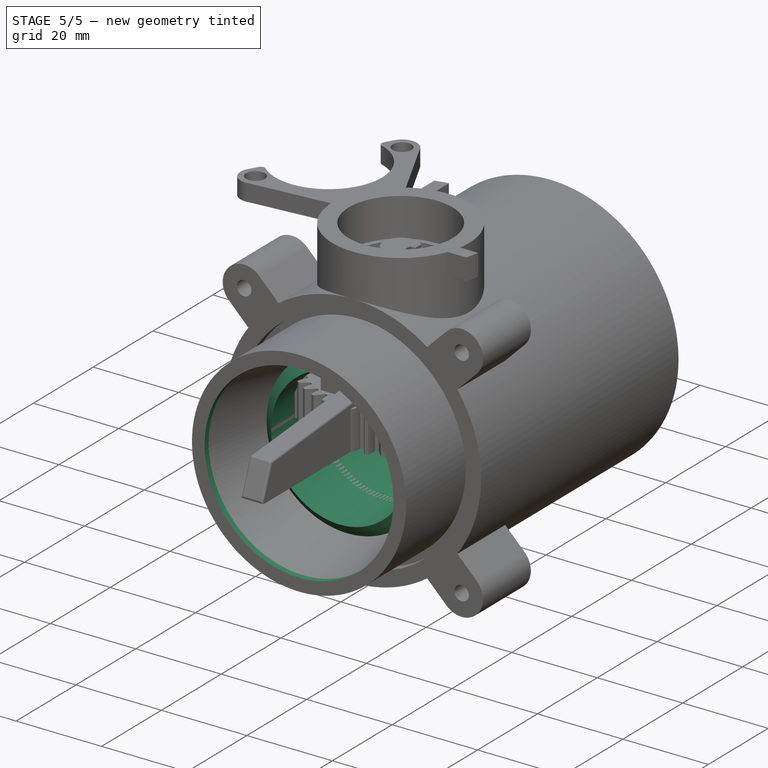
[diagram: stage 5 of 5 — iso view after this stage's code; geometry added in this stage tinted green]
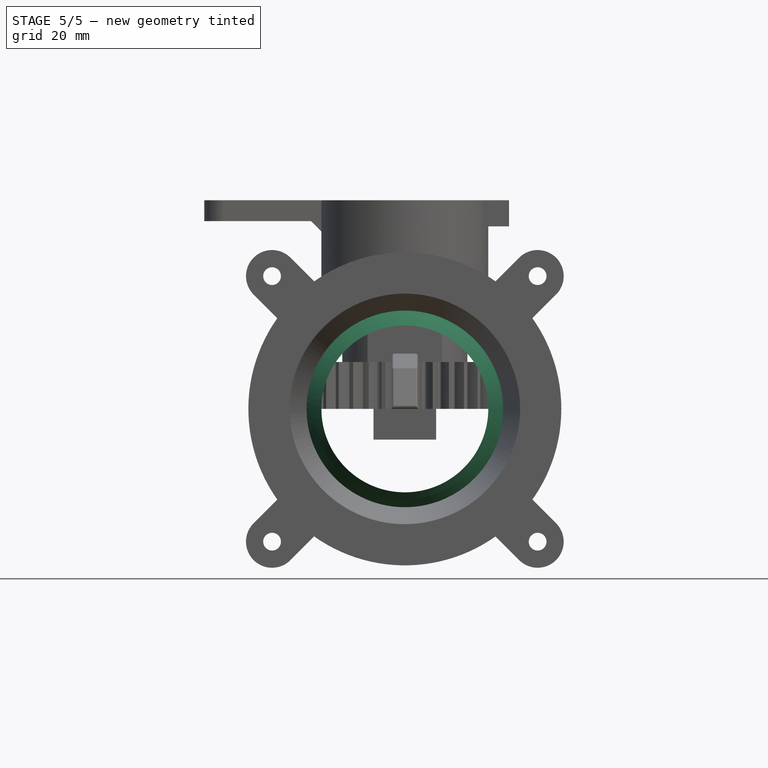
[diagram: stage 5 of 5 — front view after this stage's code; geometry added in this stage tinted green]
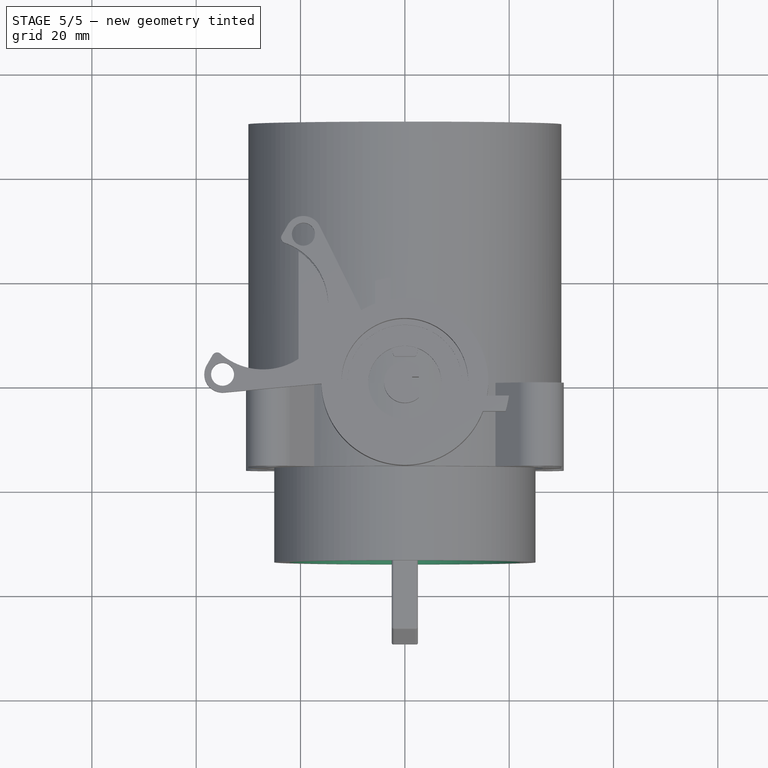
[diagram: stage 5 of 5 — top view after this stage's code; geometry added in this stage tinted green]
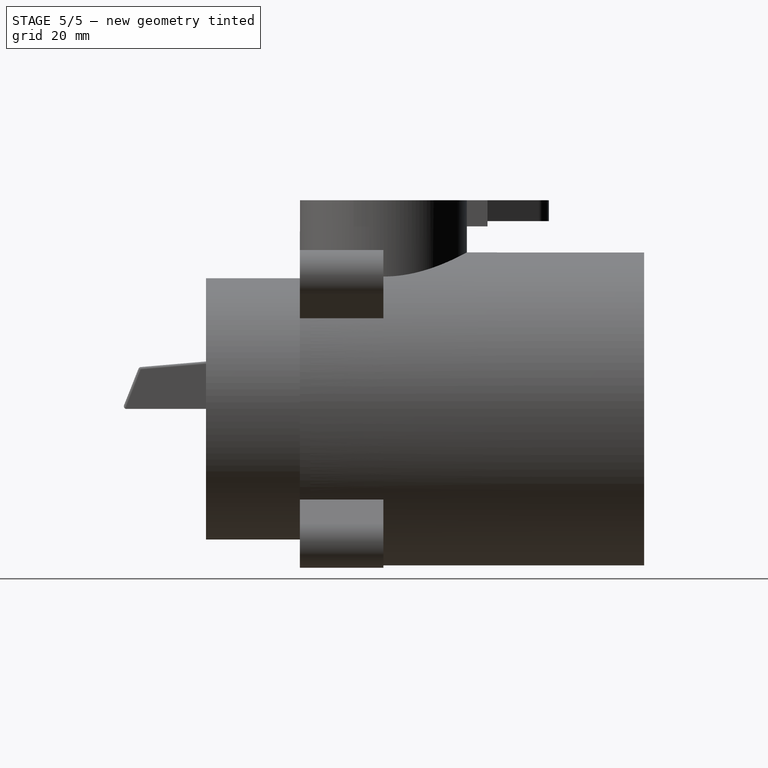
[diagram: stage 5 of 5 — right view after this stage's code; geometry added in this stage tinted green]
FEATURE [Sketcher::SketchObject] Sketch
  FullyConstrained = true
  MapMode = 5
  Support = -> [XY_Plane]
  sketch-geometry (8):
    g0: LineSegment StartX=0 StartY=0 StartZ=0 EndX=1.6e-15 EndY=26 EndZ=0
    g1: LineSegment StartX=0 StartY=0 StartZ=0 EndX=-4.8e-15 EndY=-26 EndZ=0
    g2: LineSegment StartX=0 StartY=20.4939 StartZ=0 EndX=16 EndY=20.4939 EndZ=0
    g3: LineSegment StartX=0 StartY=-20.4939 StartZ=0 EndX=16 EndY=-20.4939 EndZ=0
    g4: ArcOfCircle CenterX=0 CenterY=0 CenterZ=0 NormalX=0 NormalY=0 NormalZ=1 AngleXU=0 Radius=26 StartAngle=0.907923 EndAngle=1.5708
    g5: ArcOfCircle CenterX=0 CenterY=0 CenterZ=0 NormalX=0 NormalY=0 NormalZ=1 AngleXU=0 Radius=26 StartAngle=4.71239 EndAngle=5.37526
    g6: ArcOfCircle CenterX=0 CenterY=0 CenterZ=0 NormalX=0 NormalY=0 NormalZ=1 AngleXU=0 Radius=26 StartAngle=5.37526 EndAngle=7.19111
    g7: LineSegment StartX=16 StartY=20.4939 StartZ=0 EndX=16 EndY=-20.4939 EndZ=0
  constraints (22):
    c: Coincident(g0,g-1)
    c: PointOnObject(g0,g-2)
    c: Coincident(g1,g0)
    c: PointOnObject(g1,g-2)
    c: PointOnObject(g2,g0)
    c: Horizontal(g2)
    c: PointOnObject(g3,g1)
    c: Horizontal(g3)
    c: Equal(g2,g3)
    c: Coincident(g4,g0)
    c: Coincident(g4,g0)
    c: Coincident(g4,g2)
    c: Coincident(g5,g4)
    c: Coincident(g5,g3)
    c: Coincident(g5,g1)
    c: Coincident(g6,g4)
    c: Coincident(g6,g4)
    c: Coincident(g6,g5)
    c: Coincident(g7,g6)
    c: Coincident(g7,g6)
    c: Distance(g2) = 16
    c: Diameter(g6) = 52
FEATURE [PartDesign::Revolution] Revolution
  Angle = 360
  Axis = (0,1,0)
  Base = (0,0,0)
  Profile = -> Sketch
  ReferenceAxis = -> Sketch [V_Axis]
  Reversed = true
FEATURE [Sketcher::SketchObject] Sketch001
  FullyConstrained = true
  MapMode = 5
  Placement = pos=(0,0,0) rot=(0.57735,0.57735,0.57735;2.0944rad)
  Support = -> [YZ_Plane]
  sketch-geometry (5):
    g0: LineSegment StartX=2.5 StartY=21 StartZ=0 EndX=2.5 EndY=31 EndZ=0
    g1: LineSegment StartX=2.5 StartY=31 StartZ=0 EndX=-2.5 EndY=31 EndZ=0
    g2: LineSegment StartX=-2.5 StartY=31 StartZ=0 EndX=-2.5 EndY=21 EndZ=0
    g3: LineSegment StartX=-2.5 StartY=21 StartZ=0 EndX=2.5 EndY=21 EndZ=0
    g4: GeomPoint X=0 Y=26 Z=0
  constraints (13):
    c: Coincident(g0,g1)
    c: Coincident(g1,g2)
    c: Coincident(g2,g3)
    c: Coincident(g3,g0)
    c: Horizontal(g1)
    c: Horizontal(g3)
    c: Vertical(g0)
    c: Vertical(g2)
    c: Symmetric(g1,g0,g4)
    c: PointOnObject(g4,g-2)
    c: Distance(g4,g-1) = 26
    c: Distance(g1) = 5
    c: Distance(g0) = 10
FEATURE [PartDesign::Pocket] Pocket
  BaseFeature = -> Revolution
  Direction = (-1,2e-16,-3e-16)
  Length = 24
  Length2 = 5
  Midplane = true
  Profile = -> Sketch001
  ReferenceAxis = -> Sketch001 [N_Axis]
  Type = 0
FEATURE [Sketcher::SketchObject] Sketch010
  FullyConstrained = true
  MapMode = 5
  Support = -> [XY_Plane002]
  sketch-geometry (2):
    g0: Circle CenterX=0 CenterY=0 CenterZ=0 NormalX=0 NormalY=0 NormalZ=1 AngleXU=0 Radius=4
    g1: Circle CenterX=0 CenterY=0 CenterZ=0 NormalX=0 NormalY=0 NormalZ=1 AngleXU=0 Radius=12
  constraints (4):
    c: Coincident(g0,g-1)
    c: Coincident(g1,g0)
    c: Diameter(g0) = 8
    c: Diameter(g1) = 24
FEATURE [PartDesign::Pad] Pad001
  Direction = (0,0,1)
  Length = 8.1
  Length2 = 10
  Profile = -> Sketch010
  ReferenceAxis = -> Sketch010 [N_Axis]
  Type = 0
FEATURE [PartDesign::Body] Body002  label="Body002: Bearing"
  Group = -> [Sketch010,Pad001]
  Origin = -> Origin002
  Placement = pos=(0,0,31) rot=(0,0,1;0rad)
  Tip = -> Pad001
FEATURE [Sketcher::SketchObject] Sketch011
  FullyConstrained = true
  MapMode = 5
  Support = -> [XY_Plane003]
  sketch-geometry (1):
    g0: Circle CenterX=0 CenterY=0 CenterZ=0 NormalX=0 NormalY=0 NormalZ=1 AngleXU=0 Radius=3.85
  constraints (2):
    c: Coincident(g0,g-1)
    c: Diameter(g0) = 7.7
FEATURE [PartDesign::Pad] Pad002
  Direction = (0,0,1)
  Length = 35
  Length2 = 10
  Profile = -> Sketch011
  ReferenceAxis = -> Sketch011 [N_Axis]
  Type = 0
FEATURE [Sketcher::SketchObject] Sketch012
  FullyConstrained = true
  MapMode = 5
  Placement = pos=(0,0,0) rot=(1,0,0;3.14159rad)
  Support = -> [Pad002]
  sketch-geometry (5):
    g0: LineSegment StartX=-6 StartY=2.3 StartZ=0 EndX=-6 EndY=-2.3 EndZ=0
    g1: LineSegment StartX=-6 StartY=-2.3 StartZ=0 EndX=6 EndY=-2.3 EndZ=0
    g2: LineSegment StartX=6 StartY=-2.3 StartZ=0 EndX=6 EndY=2.3 EndZ=0
    g3: LineSegment StartX=6 StartY=2.3 StartZ=0 EndX=-6 EndY=2.3 EndZ=0
    g4: GeomPoint X=0 Y=0 Z=0
  constraints (12):
    c: Coincident(g0,g1)
    c: Coincident(g1,g2)
    c: Coincident(g2,g3)
    c: Coincident(g3,g0)
    c: Horizontal(g1)
    c: Horizontal(g3)
    c: Vertical(g0)
    c: Vertical(g2)
    c: Symmetric(g1,g0,g4)
    c: Coincident(g4,g-1)
    c: Distance(g2) = 4.6
    c: Distance(g3) = 12
FEATURE [PartDesign::Pad] Pad003
  BaseFeature = -> Pad002
  Direction = (0,0,-1)
  Length = 5.9
  Length2 = 10
  Profile = -> Sketch012
  ReferenceAxis = -> Sketch012 [N_Axis]
  Type = 0
FEATURE [Sketcher::SketchObject] Sketch013
  FullyConstrained = true
  MapMode = 5
  Placement = pos=(0,0,0) rot=(0.57735,0.57735,0.57735;2.0944rad)
  Support = -> [YZ_Plane003]
  sketch-geometry (8):
    g0: LineSegment StartX=-2.3 StartY=0 StartZ=0 EndX=-3.85 EndY=1.5 EndZ=0
    g1: LineSegment StartX=-3.85 StartY=1.5 StartZ=0 EndX=-3.85 EndY=0 EndZ=0
    g2: LineSegment StartX=-3.85 StartY=0 StartZ=0 EndX=-2.3 EndY=0 EndZ=0
    g3: LineSegment StartX=2.3 StartY=0 StartZ=0 EndX=3.85 EndY=1.5 EndZ=0
    g4: LineSegment StartX=3.85 StartY=1.5 StartZ=0 EndX=3.85 EndY=0 EndZ=0
    g5: LineSegment StartX=3.85 StartY=0 StartZ=0 EndX=2.3 EndY=0 EndZ=0
    g6: LineSegment StartX=-2.3 StartY=0 StartZ=0 EndX=0 EndY=0 EndZ=0
    g7: LineSegment StartX=0 StartY=0 StartZ=0 EndX=2.3 EndY=0 EndZ=0
  constraints (22):
    c: PointOnObject(g0,g-1)
    c: Coincident(g1,g0)
    c: PointOnObject(g1,g-1)
    c: Vertical(g1)
    c: Coincident(g2,g1)
    c: Coincident(g2,g0)
    c: DistanceX(g0,g-1) = 2.3
    c: DistanceX(g1,g-1) = 3.85
    c: Distance(g1) = 1.5
    c: PointOnObject(g3,g-1)
    c: PointOnObject(g4,g-1)
    c: Coincident(g5,g4)
    c: Coincident(g5,g3)
    c: Vertical(g4)
    c: Equal(g5,g2)
    c: Equal(g1,g4)
    c: Coincident(g3,g4)
    c: Coincident(g6,g0)
    c: Coincident(g6,g-1)
    c: Coincident(g7,g6)
    c: Coincident(g7,g3)
    c: Equal(g6,g7)
FEATURE [PartDesign::Pocket] Pocket005
  BaseFeature = -> Pad003
  Direction = (-1,2e-16,-3e-16)
  Length = 5
  Length2 = 5
  Midplane = true
  Profile = -> Sketch013
  ReferenceAxis = -> Sketch013 [N_Axis]
  Type = 1
FEATURE [Sketcher::SketchObject] Sketch014
  FullyConstrained = true
  MapMode = 5
  Placement = pos=(0,0,35) rot=(0,0,1;0rad)
  Support = -> [Pocket005]
  sketch-geometry (17):
    g0: LineSegment StartX=1.35 StartY=1 StartZ=0 EndX=1.35 EndY=-1 EndZ=0
    g1: LineSegment StartX=1.35 StartY=-1 StartZ=0 EndX=6.35 EndY=-1 EndZ=0
    g2: LineSegment StartX=6.35 StartY=-1 StartZ=0 EndX=6.35 EndY=1 EndZ=0
    g3: LineSegment StartX=6.35 StartY=1 StartZ=0 EndX=1.35 EndY=1 EndZ=0
    g4: GeomPoint X=3.85 Y=0 Z=0
    g5: LineSegment StartX=3.85 StartY=0 StartZ=0 EndX=1.35 EndY=0 EndZ=0
    g6: Circle CenterX=0 CenterY=0 CenterZ=0 NormalX=0 NormalY=0 NormalZ=1 AngleXU=0 Radius=3.85
    g7: LineSegment StartX=2.65 StartY=2.79285 StartZ=0 EndX=2.65 EndY=1 EndZ=0
    g8: LineSegment StartX=2.65 StartY=-1 StartZ=0 EndX=2.65 EndY=-2.79285 EndZ=0
    g9: ArcOfCircle CenterX=0 CenterY=0 CenterZ=0 NormalX=0 NormalY=0 NormalZ=1 AngleXU=0 Radius=3.85 StartAngle=0.262753 EndAngle=0.811637
    g10: ArcOfCircle CenterX=0 CenterY=0 CenterZ=0 NormalX=0 NormalY=0 NormalZ=1 AngleXU=0 Radius=3.85 StartAngle=5.47155 EndAngle=6.02043
    g11: LineSegment StartX=2.65 StartY=1 StartZ=0 EndX=2.65 EndY=-1 EndZ=0
    g12: LineSegment StartX=2.65 StartY=0 StartZ=0 EndX=-3.85 EndY=0 EndZ=0
    g13: LineSegment StartX=2.65 StartY=1 StartZ=0 EndX=1.35 EndY=1 EndZ=0
    g14: LineSegment StartX=1.35 StartY=-1 StartZ=0 EndX=2.65 EndY=-1 EndZ=0
    g15: LineSegment StartX=3.71786 StartY=1 StartZ=0 EndX=6.35 EndY=1 EndZ=0
    g16: LineSegment StartX=3.71786 StartY=-1 StartZ=0 EndX=6.35 EndY=-1 EndZ=0
  constraints (46):
    c: Coincident(g0,g1)
    c: Coincident(g1,g2)
    c: Coincident(g2,g3)
    c: Coincident(g3,g0)
    c: Horizontal(g1)
    c: Horizontal(g3)
    c: Vertical(g0)
    c: Vertical(g2)
    c: Symmetric(g1,g0,g4)
    c: PointOnObject(g4,g-1)
    c: Coincident(g5,g4)
    c: PointOnObject(g5,g0)
    c: Horizontal(g5)
    c: Distance(g4,g-1) = 3.85
    c: Distance(g0) = 2
    c: Distance(g5) = 2.5
    c: Coincident(g6,g-1)
    c: Diameter(g6) = 7.7
    c: PointOnObject(g7,g6)
    c: PointOnObject(g7,g3)
    c: Vertical(g7)
    c: PointOnObject(g8,g1)
    c: PointOnObject(g8,g6)
    c: Vertical(g8)
    c: Coincident(g9,g6)
    c: Coincident(g9,g7)
    c: PointOnObject(g9,g3)
    c: Coincident(g10,g9)
    c: Coincident(g10,g8)
    c: PointOnObject(g10,g1)
    c: Equal(g8,g7)
    c: Coincident(g11,g7)
    c: Coincident(g11,g8)
    c: PointOnObject(g12,g11)
    c: PointOnObject(g12,g6)
    c: Horizontal(g12)
    c: Perpendicular(g6,g12)
    c: Distance(g12) = 6.5
    c: Coincident(g13,g7)
    c: Coincident(g13,g0)
    c: Coincident(g14,g0)
    c: Coincident(g14,g8)
    c: Coincident(g15,g9)
    c: Coincident(g15,g2)
    c: Coincident(g16,g10)
    c: Coincident(g16,g2)
FEATURE [PartDesign::Pocket] Pocket006
  BaseFeature = -> Pocket005
  Direction = (0,0,-1)
  Length = 21.5
  Length2 = 5
  Profile = -> Sketch014
  ReferenceAxis = -> Sketch014 [N_Axis]
  Type = 0
FEATURE [Sketcher::SketchObject] Sketch015
  AttachmentOffset = pos=(0,0,2) rot=(0,0,1;0rad)
  FullyConstrained = true
  MapMode = 5
  Placement = pos=(0,0,2) rot=(0,0,1;0rad)
  Support = -> [XY_Plane003]
  sketch-geometry (1):
    g0: Circle CenterX=0 CenterY=0 CenterZ=0 NormalX=0 NormalY=0 NormalZ=1 AngleXU=0 Radius=5
  constraints (2):
    c: Coincident(g0,g-1)
    c: Diameter(g0) = 10
FEATURE [PartDesign::Pad] Pad004
  BaseFeature = -> Pocket006
  Direction = (0,0,1)
  Length = 1.9
  Length2 = 10
  Profile = -> Sketch015
  ReferenceAxis = -> Sketch015 [N_Axis]
  Type = 0
FEATURE [Sketcher::SketchObject] Sketch017
  FullyConstrained = true
  MapMode = 5
  Placement = pos=(0,0,0) rot=(1,0,0;1.5708rad)
  Support = -> [XZ_Plane004]
  sketch-geometry (1):
    g0: Circle CenterX=0 CenterY=0 CenterZ=0 NormalX=0 NormalY=0 NormalZ=1 AngleXU=0 Radius=30
  constraints (2):
    c: Coincident(g0,g-1)
    c: Diameter(g0) = 60
FEATURE [PartDesign::Pad] Pad005
  Direction = (0,-1,2e-16)
  Length = 14
  Length2 = 10
  Placement = pos=(0,0,0) rot=(1,0,0;1.5708rad)
  Profile = -> Sketch017
  ReferenceAxis = -> Sketch017 [N_Axis]
  Type = 0
FEATURE [Sketcher::SketchObject] Sketch018
  FullyConstrained = true
  MapMode = 5
  Placement = pos=(0,0,0) rot=(0.57735,0.57735,0.57735;2.0944rad)
  Support = -> [YZ_Plane004]
  sketch-geometry (2):
    g0: ArcOfCircle CenterX=16 CenterY=0 CenterZ=0 NormalX=0 NormalY=0 NormalZ=1 AngleXU=0 Radius=27.5 StartAngle=0 EndAngle=3.14159
    g1: LineSegment StartX=-11.5 StartY=3.4e-15 StartZ=0 EndX=43.5 EndY=0 EndZ=0
  constraints (7):
    c: PointOnObject(g0,g-1)
    c: PointOnObject(g0,g-1)
    c: PointOnObject(g0,g-1)
    c: Diameter(g0) = 55
    c: Distance(g0,g-1) = 16
    c: Coincident(g1,g0)
    c: Coincident(g1,g0)
FEATURE [PartDesign::Groove] Groove001
  Angle = 360
  Axis = (3e-16,1,-2e-16)
  Base = (0,0,0)
  BaseFeature = -> Pad005
  Placement = pos=(0,0,0) rot=(1,0,0;1.5708rad)
  Profile = -> Sketch018
  ReferenceAxis = -> Sketch018 [H_Axis]
  Reversed = true
FEATURE [Sketcher::SketchObject] Sketch019
  FullyConstrained = true
  MapMode = 5
  Placement = pos=(0,0,0) rot=(1,0,0;1.5708rad)
  Support = -> [XZ_Plane004]
  sketch-geometry (1):
    g0: Circle CenterX=0 CenterY=0 CenterZ=0 NormalX=0 NormalY=0 NormalZ=1 AngleXU=0 Radius=16
  constraints (2):
    c: Coincident(g0,g-1)
    c: Diameter(g0) = 32
FEATURE [PartDesign::Pocket] Pocket008
  BaseFeature = -> Groove001
  Direction = (0,1,-2e-16)
  Length = 5
  Length2 = 5
  Midplane = true
  Placement = pos=(0,0,0) rot=(1,0,0;1.5708rad)
  Profile = -> Sketch019
  ReferenceAxis = -> Sketch019 [N_Axis]
  Type = 1
FEATURE [Sketcher::SketchObject] Sketch020
  FullyConstrained = true
  MapMode = 5
  Placement = pos=(0,0,0) rot=(0.57735,0.57735,0.57735;2.0944rad)
  Support = -> [YZ_Plane004]
  sketch-geometry (7):
    g0: LineSegment StartX=0 StartY=0 StartZ=0 EndX=16 EndY=0 EndZ=0
    g1: Circle CenterX=16 CenterY=0 CenterZ=0 NormalX=0 NormalY=0 NormalZ=1 AngleXU=0 Radius=26.15
    g2: Circle CenterX=16 CenterY=0 CenterZ=0 NormalX=0 NormalY=0 NormalZ=1 AngleXU=0 Radius=27.5
    g3: LineSegment StartX=-6.36627 StartY=16 StartZ=0 EndX=-4.68387 EndY=16 EndZ=0
    g4: ArcOfCircle CenterX=16 CenterY=0 CenterZ=0 NormalX=0 NormalY=0 NormalZ=1 AngleXU=0 Radius=26.15 StartAngle=2.42582 EndAngle=2.48319
    g5: ArcOfCircle CenterX=16 CenterY=0 CenterZ=0 NormalX=0 NormalY=0 NormalZ=1 AngleXU=0 Radius=27.5 StartAngle=2.39327 EndAngle=2.52063
    g6: LineSegment StartX=-4.15288 StartY=18.7113 StartZ=0 EndX=-3.73244 EndY=17.1596 EndZ=0
  constraints (19):
    c: Coincident(g0,g-1)
    c: PointOnObject(g0,g-1)
    c: Distance(g0) = 16
    c: Coincident(g1,g0)
    c: Coincident(g2,g0)
    c: Diameter(g1) = 52.3
    c: Diameter(g2) = 55
    c: PointOnObject(g3,g2)
    c: PointOnObject(g3,g1)
    c: Horizontal(g3)
    c: DistanceY(g0,g3) = 16
    c: Coincident(g4,g0)
    c: Coincident(g4,g3)
    c: Coincident(g5,g4)
    c: Coincident(g5,g3)
    c: Coincident(g6,g5)
    c: Coincident(g6,g4)
    c: Distance(g3,g4) = 1.5
    c: Distance(g5,g3) = 3.5
FEATURE [PartDesign::Revolution] Revolution003
  Angle = 360
  Axis = (3e-16,1,-2e-16)
  Base = (0,0,0)
  BaseFeature = -> Pocket008
  Placement = pos=(0,0,0) rot=(1,0,0;1.5708rad)
  Profile = -> Sketch020
  ReferenceAxis = -> Sketch020 [H_Axis]
FEATURE [PartDesign::Chamfer] Chamfer001
  Angle = 45
  Base = -> Revolution003 [Edge5]
  BaseFeature = -> Revolution003
  ChamferType = 0
  FlipDirection = false
  Placement = pos=(0,0,0) rot=(1,0,0;1.5708rad)
  Size = 6
  Size2 = 1
  SupportTransform = false
  UseAllEdges = false
FEATURE [Sketcher::SketchObject] Sketch023
  FullyConstrained = true
  MapMode = 5
  Placement = pos=(0,-14,6.2e-15) rot=(1,0,0;1.5708rad)
  Support = -> [Chamfer001]
  sketch-geometry (2):
    g0: Circle CenterX=0 CenterY=0 CenterZ=0 NormalX=0 NormalY=0 NormalZ=1 AngleXU=0 Radius=22.1
    g1: Circle CenterX=0 CenterY=0 CenterZ=0 NormalX=0 NormalY=0 NormalZ=1 AngleXU=0 Radius=25.05
  constraints (4):
    c: Coincident(g0,g-1)
    c: Coincident(g1,g0)
    c: Diameter(g1) = 50.1
    c: Diameter(g0) = 44.2
FEATURE [PartDesign::Pad] Pad006
  BaseFeature = -> Chamfer001
  Direction = (0,-1,2e-16)
  Length = 20
  Length2 = 10
  Placement = pos=(0,0,0) rot=(1,0,0;1.5708rad)
  Profile = -> Sketch023
  ReferenceAxis = -> Sketch023 [N_Axis]
  Type = 0
FEATURE [Sketcher::SketchObject] Sketch025
  FullyConstrained = true
  MapMode = 5
  Placement = pos=(0,0,0) rot=(1,0,0;1.5708rad)
  Support = -> [XZ_Plane004]
  sketch-geometry (6):
    g0: LineSegment StartX=0 StartY=0 StartZ=0 EndX=25.4558 EndY=25.4558 EndZ=0
    g1: Circle CenterX=25.4558 CenterY=25.4558 CenterZ=0 NormalX=0 NormalY=0 NormalZ=1 AngleXU=0 Radius=1.7
    g2: ArcOfCircle CenterX=25.4558 CenterY=25.4558 CenterZ=0 NormalX=0 NormalY=0 NormalZ=1 AngleXU=0 Radius=5 StartAngle=5.49779 EndAngle=8.63938
    g3: LineSegment StartX=21.9203 StartY=28.9914 StartZ=0 EndX=17.381 EndY=24.452 EndZ=0
    g4: LineSegment StartX=28.9914 StartY=21.9203 StartZ=0 EndX=24.452 EndY=17.381 EndZ=0
    g5: ArcOfCircle CenterX=0 CenterY=0 CenterZ=0 NormalX=0 NormalY=0 NormalZ=1 AngleXU=0 Radius=30 StartAngle=0.61795 EndAngle=0.952846
  constraints (15):
    c: Coincident(g0,g-1)
    c: Angle(g-1,g0) = 0.785398
    c: Distance(g0) = 36
    c: Coincident(g1,g0)
    c: Diameter(g1) = 3.4
    c: Coincident(g2,g1)
    c: Parallel(g3,g0)
    c: Parallel(g0,g4)
    c: Coincident(g5,g0)
    c: Coincident(g5,g3)
    c: Coincident(g5,g4)
    c: Diameter(g5) = 60
    c: Tangent(g4,g2) = 1.5708
    c: Tangent(g3,g2) = -1.5708
    c: Diameter(g2) = 10
FEATURE [PartDesign::Pad] Pad008
  BaseFeature = -> Pad006
  Direction = (0,-1,2e-16)
  Length = 10
  Length2 = 10
  Placement = pos=(0,0,0) rot=(1,0,0;1.5708rad)
  Profile = -> Sketch025
  ReferenceAxis = -> Sketch025 [N_Axis]
  Type = 0
FEATURE [PartDesign::Fillet] Fillet
  Base = -> Pad008 [Edge16,Edge15,Edge17]
  BaseFeature = -> Pad008
  Placement = pos=(0,0,0) rot=(1,0,0;1.5708rad)
  Radius = 1
  SupportTransform = false
  UseAllEdges = false
FEATURE [PartDesign::PolarPattern] PolarPattern
  Angle = 360
  Axis = -> Sketch025 [N_Axis]
  Occurrences = 4
  Placement = pos=(0,0,0) rot=(1,0,0;1.5708rad)
FEATURE [PartDesign::MultiTransform] MultiTransform
  BaseFeature = -> Fillet
  Originals = -> [Pad008,Fillet]
  Placement = pos=(0,0,0) rot=(1,0,0;1.5708rad)
  Transformations = -> [PolarPattern]
FEATURE [PartDesign::Fillet] Fillet003
  Base = -> Fillet002 [Edge13,Edge6,Edge8]
  BaseFeature = -> Fillet002
  Radius = 0.5
  SupportTransform = false
  UseAllEdges = false
FEATURE [PartDesign::Fillet] Fillet004
  Base = -> Fillet003 [Edge25,Edge28,Edge40,Edge35,Edge41,Edge57,Edge44,Edge36,Edge24,Edge29,Edge34,Edge54]
  BaseFeature = -> Fillet003
  Radius = 0.5
  SupportTransform = false
  UseAllEdges = false
FEATURE [Sketcher::SketchObject] Sketch030
  FullyConstrained = true
  MapMode = 5
  Support = -> [XY_Plane005]
  sketch-geometry (10):
    g0: Circle CenterX=0 CenterY=0 CenterZ=0 NormalX=0 NormalY=0 NormalZ=1 AngleXU=0 Radius=4
    g1: LineSegment StartX=2.8 StartY=2.85657 StartZ=0 EndX=2.8 EndY=0.85 EndZ=0
    g2: LineSegment StartX=2.8 StartY=0.85 StartZ=0 EndX=1.5 EndY=0.85 EndZ=0
    g3: LineSegment StartX=1.5 StartY=0.85 StartZ=0 EndX=1.5 EndY=-0.85 EndZ=0
    g4: LineSegment StartX=1.5 StartY=-0.85 StartZ=0 EndX=2.8 EndY=-0.85 EndZ=0
    g5: LineSegment StartX=2.8 StartY=-0.85 StartZ=0 EndX=2.8 EndY=-2.85657 EndZ=0
    g6: ArcOfCircle CenterX=0 CenterY=0 CenterZ=0 NormalX=0 NormalY=0 NormalZ=1 AngleXU=0 Radius=4 StartAngle=0.795399 EndAngle=5.48779
    g7: LineSegment StartX=-4 StartY=0 StartZ=0 EndX=1.5 EndY=0 EndZ=0
    g8: LineSegment StartX=2.8 StartY=0.85 StartZ=0 EndX=2.8 EndY=-0.85 EndZ=0
    g9: LineSegment StartX=2.8 StartY=0 StartZ=0 EndX=-4 EndY=0 EndZ=0
  constraints (29):
    c: Coincident(g0,g-1)
    c: Diameter(g0) = 8
    c: Vertical(g1)
    c: Coincident(g2,g1)
    c: Horizontal(g2)
    c: Vertical(g3)
    c: Coincident(g4,g3)
    c: Horizontal(g4)
    c: Coincident(g5,g4)
    c: PointOnObject(g5,g0)
    c: Vertical(g5)
    c: Equal(g1,g5)
    c: Coincident(g2,g3)
    c: Equal(g2,g4)
    c: Coincident(g6,g0)
    c: Coincident(g6,g5)
    c: Coincident(g6,g1)
    c: PointOnObject(g7,g6)
    c: PointOnObject(g7,g3)
    c: Horizontal(g7)
    c: Perpendicular(g0,g7)
    c: Distance(g7) = 5.5
    c: Distance(g3) = 1.7
    c: Coincident(g8,g1)
    c: Coincident(g8,g4)
    c: PointOnObject(g9,g8)
    c: Coincident(g9,g7)
    c: Horizontal(g9)
    c: Distance(g9) = 6.8
FEATURE [PartDesign::Pocket] Pocket009
  BaseFeature = -> Fillet004
  Direction = (0,0,-1)
  Length = 8
  Length2 = 5
  Profile = -> Sketch030
  ReferenceAxis = -> Sketch030 [N_Axis]
  Reversed = true
  Type = 0
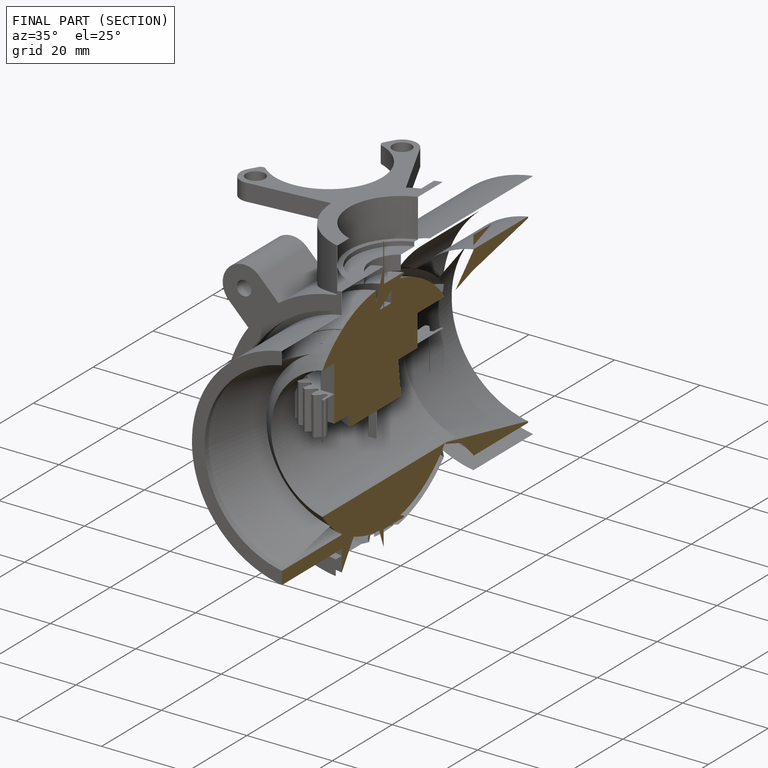
[diagram: finished part — half-section view (interior)]
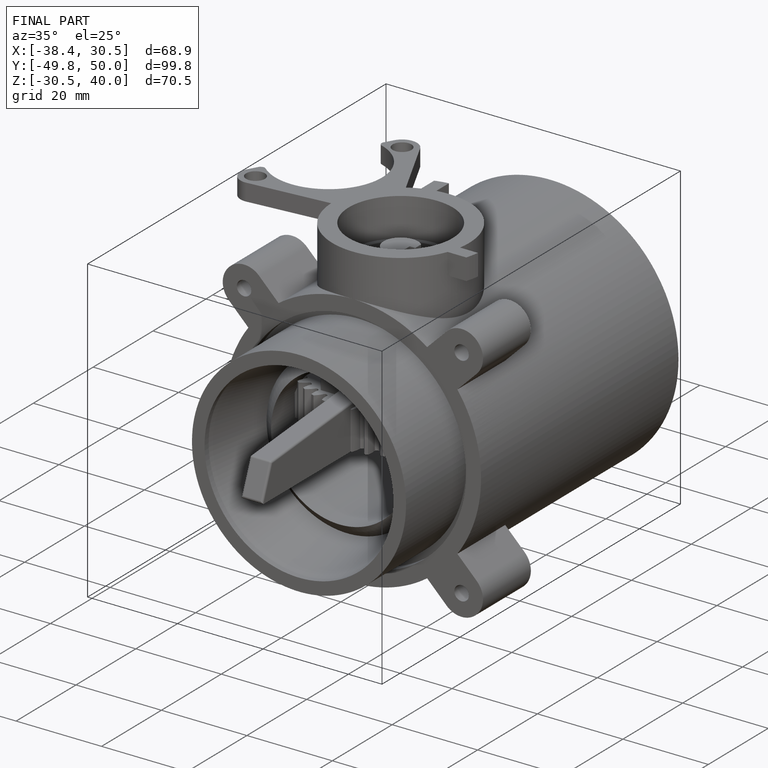
[diagram: finished part — iso view with bounding-box wireframe]
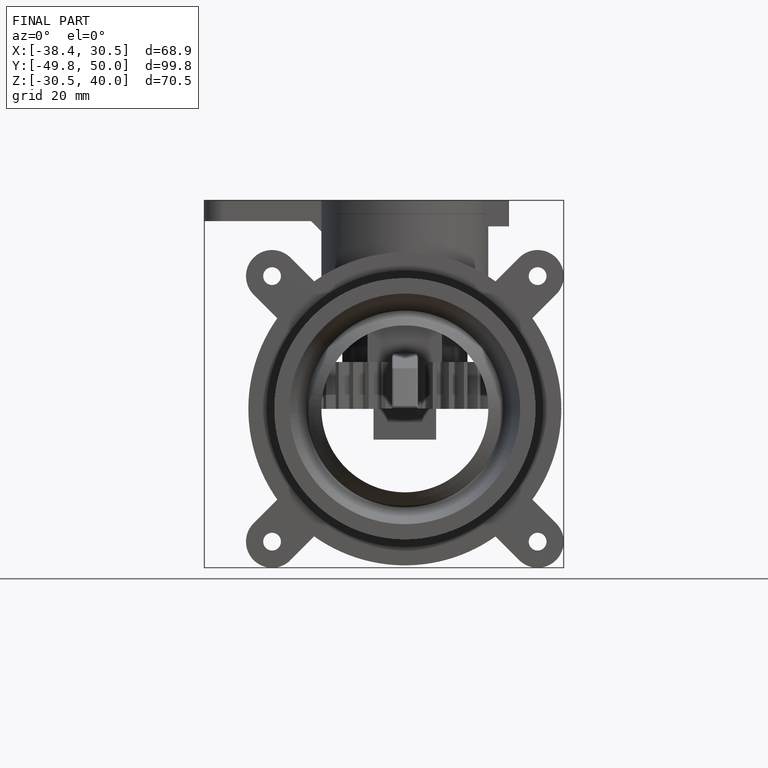
[diagram: finished part — front view with bounding-box wireframe]
